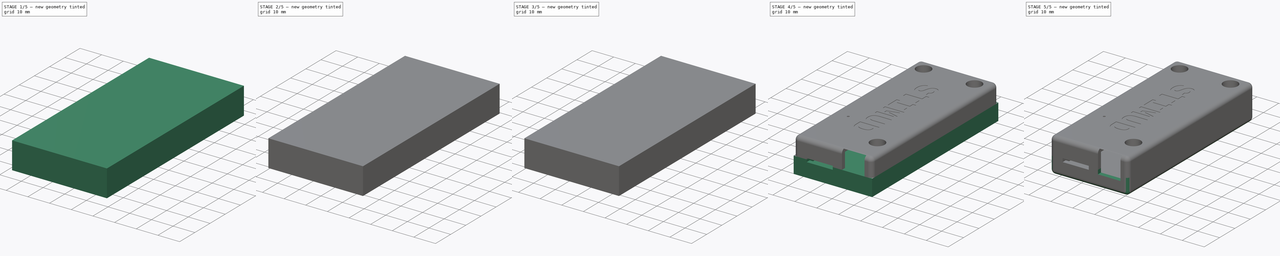
[diagram: build sequence overview — one tinted view per stage of 5, left to right]
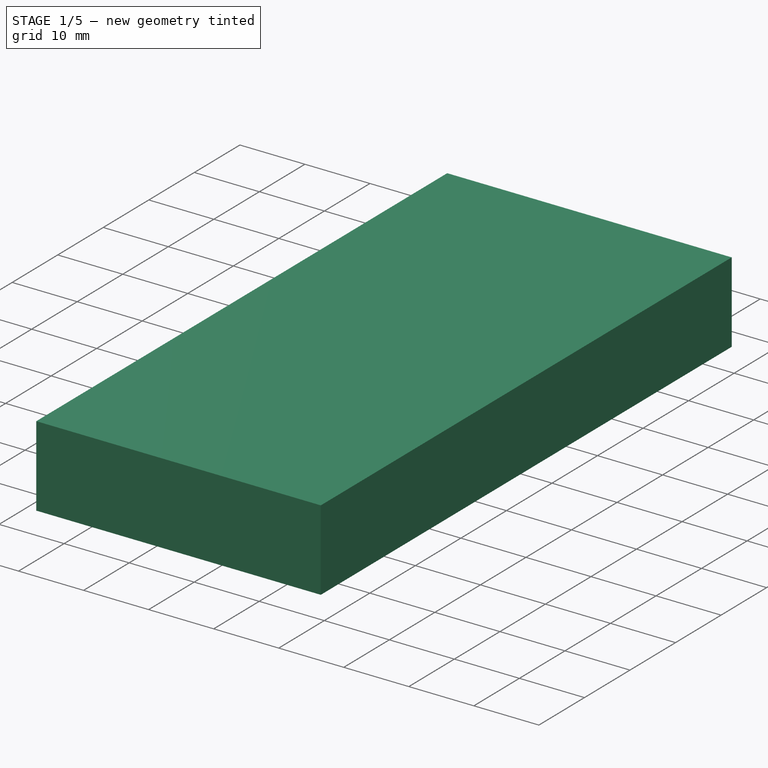
[diagram: stage 1 of 5 — iso view after this stage's code; geometry added in this stage tinted green]
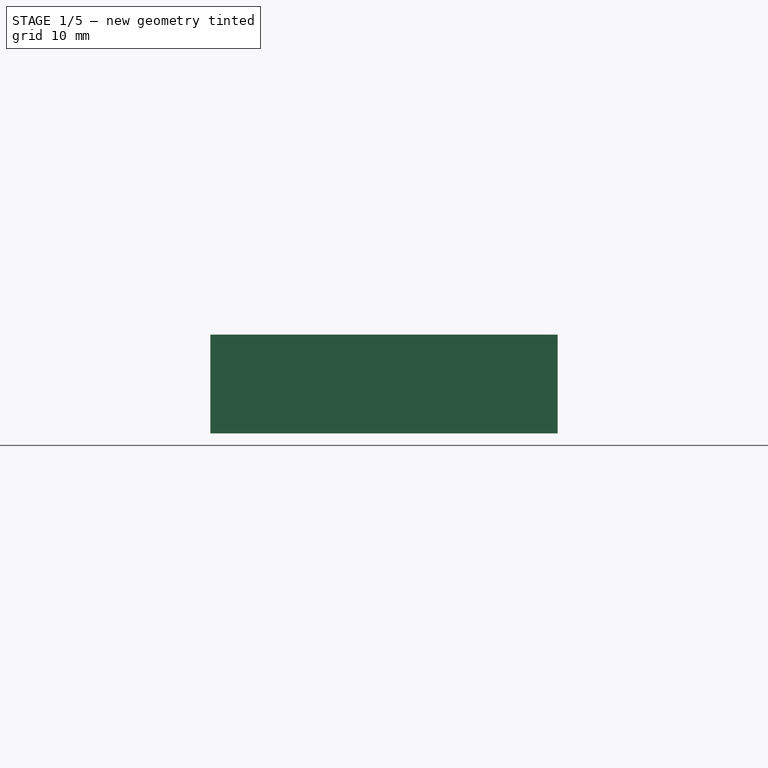
[diagram: stage 1 of 5 — front view after this stage's code; geometry added in this stage tinted green]
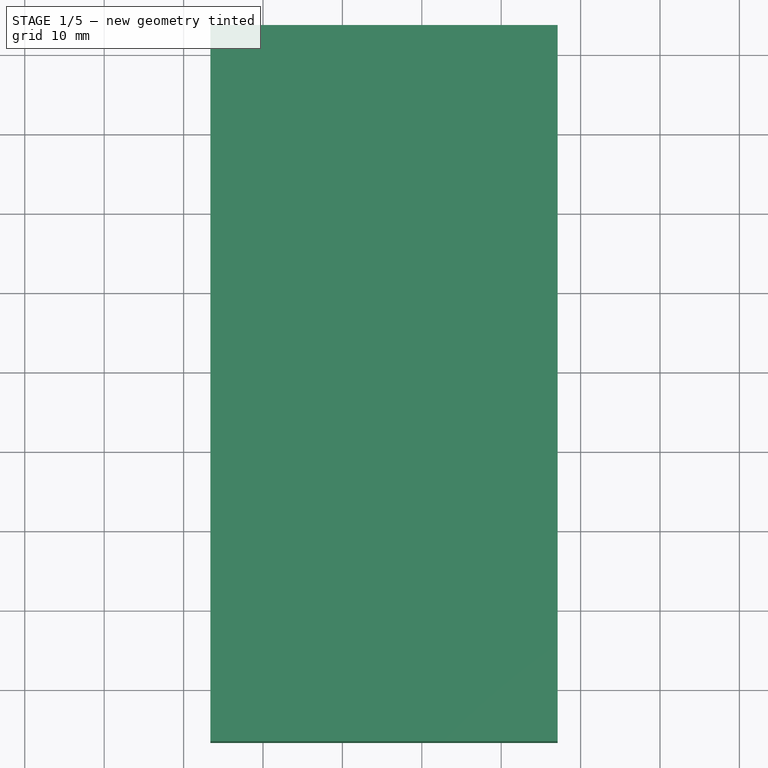
[diagram: stage 1 of 5 — top view after this stage's code; geometry added in this stage tinted green]
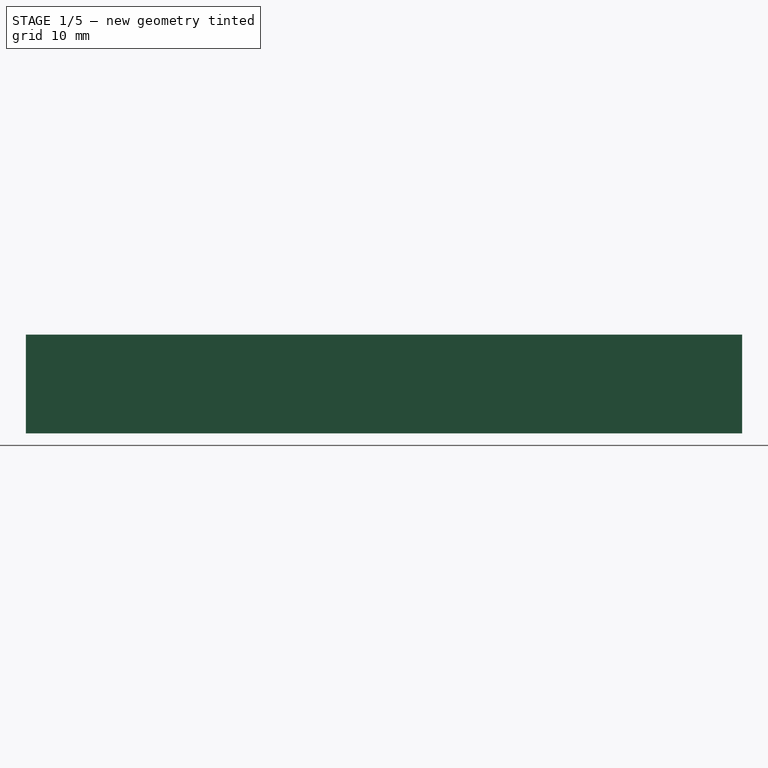
[diagram: stage 1 of 5 — right view after this stage's code; geometry added in this stage tinted green]
FCSTD DOCUMENT  (FreeCAD 0.18R4 (GitTag))
Label: Case
License: All rights reserved
LicenseURL: http://en.wikipedia.org/wiki/All_rights_reserved
objects: Part::Feature×50, Sketcher::SketchObject×23, App::Part×17, PartDesign::Pocket×14, PartDesign::Pad×7, PartDesign::Fillet×4, PartDesign::Hole×3, PartDesign::Body×3, Part::Part2DObjectPython×2, Spreadsheet::Sheet×1, Part::Cut×1
note: 131 computed .brp shape members not serialized (recipe doc carries the construction recipe); baked Part::Feature solids carry a one-line shape summary decoded from their .brp

FEATURE [Sketcher::SketchObject] Sketch009  label="CaseBSketchPad"
  AttachmentOffset = pos=(0,0,3) rot=(0,0,1;0rad)
  MapMode = 5
  Placement = pos=(0,0,3) rot=(0,0,1;0rad)
  Support = -> [XY_Plane018]
  expr: Constraints[11] = Params.BOARD_H + 2 * (Params.SPACE_XY + Params.GAP_XY + Params.WALL)
  expr: Constraints[10] = Params.BOARD_W + 2 * (Params.SPACE_XY + Params.GAP_XY + Params.WALL)
  expr: Constraints[9] = Params.SPACE_XY + Params.GAP_XY + Params.WALL
  expr: Constraints[8] = Params.SPACE_XY + Params.GAP_XY + Params.WALL
  expr: AttachmentOffset.Base.z = Params.BOARD_D + Params.TF_D2
  sketch-geometry (4):
    g0: LineSegment StartX=-2.65 StartY=-2.65 StartZ=0 EndX=33.13 EndY=-2.65 EndZ=0
    g1: LineSegment StartX=33.13 StartY=-2.65 StartZ=0 EndX=33.13 EndY=79.61 EndZ=0
    g2: LineSegment StartX=33.13 StartY=79.61 StartZ=0 EndX=-2.65 EndY=79.61 EndZ=0
    g3: LineSegment StartX=-2.65 StartY=79.61 StartZ=0 EndX=-2.65 EndY=-2.65 EndZ=0
  constraints (12):
    c: Coincident(g0,g1)
    c: Coincident(g1,g2)
    c: Coincident(g2,g3)
    c: Coincident(g3,g0)
    c: Horizontal(g0)
    c: Horizontal(g2)
    c: Vertical(g1)
    c: Vertical(g3)
    c: DistanceX(g0,g-1) = 2.65
    c: DistanceY(g0,g-1) = 2.65
    c: DistanceX(g0,g0) = 35.78
    c: DistanceY(g1,g1) = 82.26
FEATURE [PartDesign::Pad] Pad003  label="CaseBPad"
  Length = 8.45
  Length2 = 100
  Profile = -> Sketch009
  Type = 0
  expr: Length = Params.SWITCH_D - Params.TF_D2 + Params.GAP_Z + Params.CASE_B_EXTRA
FEATURE [Sketcher::SketchObject] Sketch010  label="CaseBSketchPocket"
  AttachmentOffset = pos=(0,0,3) rot=(0,0,1;0rad)
  MapMode = 5
  Placement = pos=(0,0,3) rot=(0,0,1;0rad)
  Support = -> [XY_Plane018]
  expr: Constraints[11] = Params.BOARD_H + 2 * (Params.SPACE_XY + Params.GAP_XY)
  expr: Constraints[10] = Params.BOARD_W + 2 * (Params.SPACE_XY + Params.GAP_XY)
  expr: Constraints[9] = Params.SPACE_XY + Params.GAP_XY
  expr: Constraints[8] = Params.SPACE_XY + Params.GAP_XY
  expr: AttachmentOffset.Base.z = Params.BOARD_D + Params.TF_D2
  sketch-geometry (4):
    g0: LineSegment StartX=-0.65 StartY=-0.65 StartZ=0 EndX=31.13 EndY=-0.65 EndZ=0
    g1: LineSegment StartX=31.13 StartY=-0.65 StartZ=0 EndX=31.13 EndY=77.61 EndZ=0
    g2: LineSegment StartX=31.13 StartY=77.61 StartZ=0 EndX=-0.65 EndY=77.61 EndZ=0
    g3: LineSegment StartX=-0.65 StartY=77.61 StartZ=0 EndX=-0.65 EndY=-0.65 EndZ=0
  constraints (12):
    c: Coincident(g0,g1)
    c: Coincident(g1,g2)
    c: Coincident(g2,g3)
    c: Coincident(g3,g0)
    c: Horizontal(g0)
    c: Horizontal(g2)
    c: Vertical(g1)
    c: Vertical(g3)
    c: DistanceX(g0,g-1) = 0.65
    c: DistanceY(g0,g-1) = 0.65
    c: DistanceX(g0,g0) = 31.78
    c: DistanceY(g1,g1) = 78.26
FEATURE [PartDesign::Pocket] Pocket005  label="CaseBPocket"
  BaseFeature = -> Pad003
  Length = 6.7
  Length2 = 100
  Profile = -> Sketch010
  Reversed = true
  Type = 0
  expr: Length = Params.CASE_D + Params.CASE_B_EXTRA - Params.SPACE_Z - 2 * Params.WALL - Params.BOARD_D - Params.TF_D2
FEATURE [Sketcher::SketchObject] Sketch012  label="CaseBSketchTfPocket"
  AttachmentOffset = pos=(0,0,3) rot=(0,0,1;0rad)
  MapMode = 5
  Placement = pos=(0,0,3) rot=(0,0,1;0rad)
  Support = -> [XY_Plane018]
  expr: Constraints[11] = Params.SPACE_XY + Params.GAP_XY + Params.WALL
  expr: Constraints.TD_W = CaseASketchTfPocket.Constraints.TD_W
  expr: Constraints.TF_X = CaseASketchTfPocket.Constraints.TF_X
  expr: AttachmentOffset.Base.z = Params.BOARD_D + Params.TF_D2
  sketch-geometry (4):
    g0: LineSegment StartX=3.28 StartY=0 StartZ=0 EndX=15.18 EndY=0 EndZ=0
    g1: LineSegment StartX=15.18 StartY=0 StartZ=0 EndX=15.18 EndY=-2.65 EndZ=0
    g2: LineSegment StartX=15.18 StartY=-2.65 StartZ=0 EndX=3.28 EndY=-2.65 EndZ=0
    g3: LineSegment StartX=3.28 StartY=-2.65 StartZ=0 EndX=3.28 EndY=0 EndZ=0
  constraints (12):
    c: Coincident(g0,g1)
    c: Coincident(g1,g2)
    c: Coincident(g2,g3)
    c: Coincident(g3,g0)
    c: Horizontal(g0)
    c: Horizontal(g2)
    c: Vertical(g1)
    c: Vertical(g3)
    c: Horizontal(g0,g-1)
    c: DistanceX(g-1,g0) = 3.28  'TF_X'
    c: DistanceX(g0,g0) = 11.9  'TD_W'
    c: DistanceY(g3,g3) = 2.65
FEATURE [PartDesign::Pocket] Pocket006  label="CaseBTfPocket"
  BaseFeature = -> Pocket005
  Length = 0.55
  Length2 = 100
  Profile = -> Sketch012
  Reversed = true
  Type = 0
  expr: Length = Params.TF_D + Params.GAP_Z + 0.3mm - Params.TF_D2
FEATURE [PartDesign::Body] Body001  label="CaseB"
  Group = -> [Sketch009,Pad003,Sketch010,Pocket005,Sketch012,Pocket006,Sketch013,Pocket007,Sketch014,Pocket008,Sketch015,Pocket009,Sketch018,Pad004,Sketch019,Pocket010,Sketch020,Pad005,Sketch021,Hole001,Sketch024,Hole002,Fillet002,Placment,Strings,Pocket012,Sketch025,Pocket013]
  Origin = -> Origin018
  Tip = -> Pocket013
FEATURE [Sketcher::SketchObject] Sketch026  label="CaseBEdgeSketchPad"
  AttachmentOffset = pos=(0,0,3) rot=(0,0,1;0rad)
  MapMode = 5
  Placement = pos=(0,0,3) rot=(0,0,1;0rad)
  Support = -> [XY_Plane019]
  expr: Constraints[11] = Params.BOARD_H + 2 * (2 * Params.FILLET_OUT + Params.SPACE_XY + Params.GAP_XY + Params.WALL)
  expr: Constraints[10] = Params.BOARD_W + 2 * (2 * Params.FILLET_OUT + Params.SPACE_XY + Params.GAP_XY + Params.WALL)
  expr: Constraints[9] = 2 * Params.FILLET_OUT + Params.SPACE_XY + Params.GAP_XY + Params.WALL
  expr: Constraints[8] = 2 * Params.FILLET_OUT + Params.SPACE_XY + Params.GAP_XY + Params.WALL
  expr: AttachmentOffset.Base.z = Params.BOARD_D + Params.TF_D2
  sketch-geometry (4):
    g0: LineSegment StartX=-6.63 StartY=-6.63 StartZ=0 EndX=37.11 EndY=-6.63 EndZ=0
    g1: LineSegment StartX=37.11 StartY=-6.63 StartZ=0 EndX=37.11 EndY=83.59 EndZ=0
    g2: LineSegment StartX=37.11 StartY=83.59 StartZ=0 EndX=-6.63 EndY=83.59 EndZ=0
    g3: LineSegment StartX=-6.63 StartY=83.59 StartZ=0 EndX=-6.63 EndY=-6.63 EndZ=0
  constraints (12):
    c: Coincident(g0,g1)
    c: Coincident(g1,g2)
    c: Coincident(g2,g3)
    c: Coincident(g3,g0)
    c: Horizontal(g0)
    c: Horizontal(g2)
    c: Vertical(g1)
    c: Vertical(g3)
    c: DistanceX(g0,g-1) = 6.63
    c: DistanceY(g0,g-1) = 6.63
    c: DistanceX(g0,g0) = 43.74
    c: DistanceY(g1,g1) = 90.22
FEATURE [PartDesign::Pad] Pad006  label="CaseBEdgePad"
  Length = 12.43
  Length2 = 100
  Profile = -> Sketch026
  Type = 0
  expr: Length = 2 * Params.FILLET_OUT + Params.SWITCH_D - Params.TF_D2 + Params.GAP_Z + Params.CASE_B_EXTRA
FEATURE [Sketcher::SketchObject] Sketch027  label="CaseBEdgeSketchPocket"
  AttachmentOffset = pos=(0,0,3) rot=(0,0,1;0rad)
  MapMode = 5
  Placement = pos=(0,0,3) rot=(0,0,1;0rad)
  Support = -> [XY_Plane019]
  expr: Constraints[11] = Params.BOARD_H + 2 * (Params.SPACE_XY + Params.GAP_XY + Params.WALL)
  expr: Constraints[10] = Params.BOARD_W + 2 * (Params.SPACE_XY + Params.GAP_XY + Params.WALL)
  expr: Constraints[9] = Params.SPACE_XY + Params.GAP_XY + Params.WALL
  expr: Constraints[8] = Params.SPACE_XY + Params.GAP_XY + Params.WALL
  expr: AttachmentOffset.Base.z = Params.BOARD_D + Params.TF_D2
  sketch-geometry (4):
    g0: LineSegment StartX=-2.65 StartY=-2.65 StartZ=0 EndX=33.13 EndY=-2.65 EndZ=0
    g1: LineSegment StartX=33.13 StartY=-2.65 StartZ=0 EndX=33.13 EndY=79.61 EndZ=0
    g2: LineSegment StartX=33.13 StartY=79.61 StartZ=0 EndX=-2.65 EndY=79.61 EndZ=0
    g3: LineSegment StartX=-2.65 StartY=79.61 StartZ=0 EndX=-2.65 EndY=-2.65 EndZ=0
  constraints (12):
    c: Coincident(g0,g1)
    c: Coincident(g1,g2)
    c: Coincident(g2,g3)
    c: Coincident(g3,g0)
    c: Horizontal(g0)
    c: Horizontal(g2)
    c: Vertical(g1)
    c: Vertical(g3)
    c: DistanceX(g0,g-1) = 2.65
    c: DistanceY(g0,g-1) = 2.65
    c: DistanceX(g0,g0) = 35.78
    c: DistanceY(g1,g1) = 82.26
FEATURE [PartDesign::Pocket] Pocket014  label="CaseBEdgePocket"
  BaseFeature = -> Pad006
  Length = 8.45
  Length2 = 100
  Profile = -> Sketch027
  Reversed = true
  Type = 0
  expr: Length = Params.SWITCH_D - Params.TF_D2 + Params.GAP_Z + Params.CASE_B_EXTRA
FEATURE [PartDesign::Fillet] Fillet003  label="CaseBEdgeFillet"
  Base = -> Pocket014 [Edge20,Edge23,Edge21,Edge18,Edge19,Edge17,Edge24,Edge22]
  BaseFeature = -> Pocket014
  Radius = 1.99
  expr: Radius = Params.FILLET_OUT
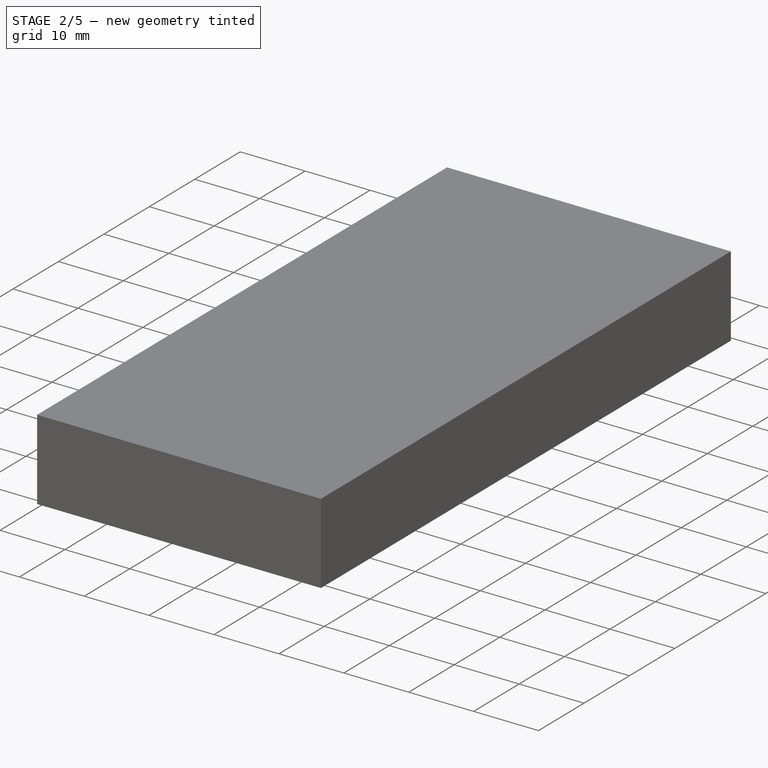
[diagram: stage 2 of 5 — iso view after this stage's code; geometry added in this stage tinted green]
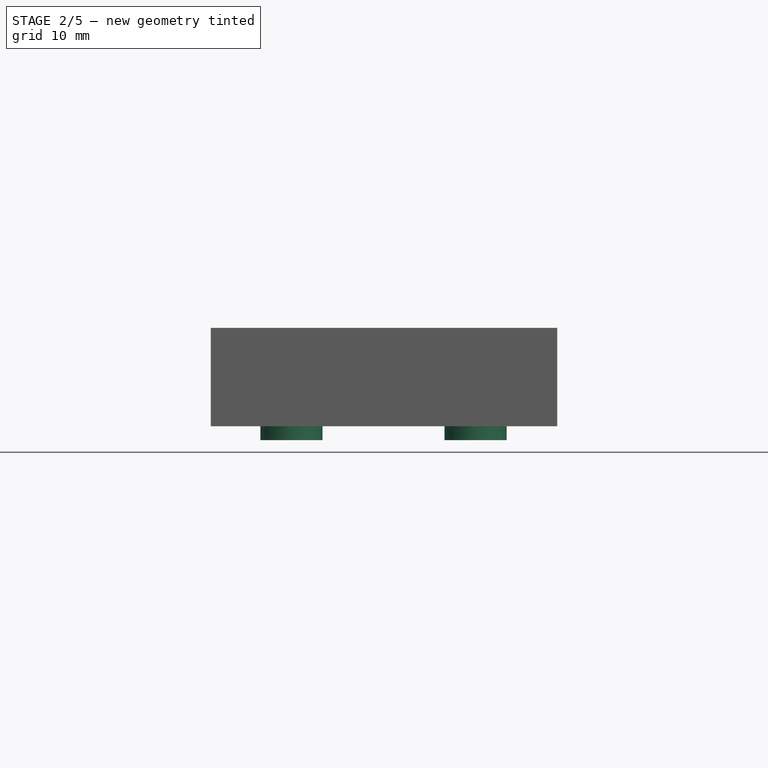
[diagram: stage 2 of 5 — front view after this stage's code; geometry added in this stage tinted green]
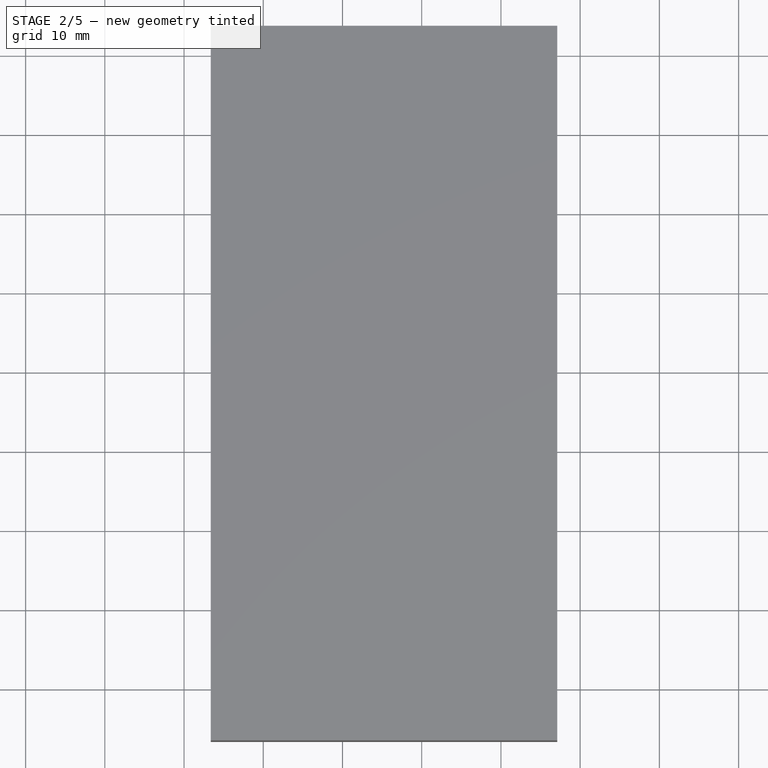
[diagram: stage 2 of 5 — top view after this stage's code; geometry added in this stage tinted green]
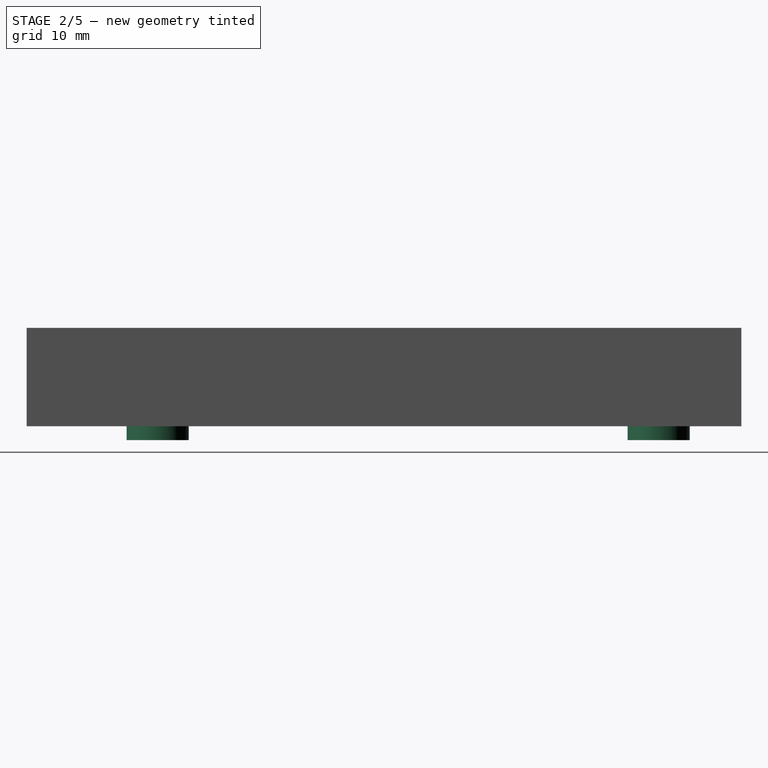
[diagram: stage 2 of 5 — right view after this stage's code; geometry added in this stage tinted green]
FEATURE [Sketcher::SketchObject] Sketch013  label="CaseBSketchSwitchPocket"
  AttachmentOffset = pos=(0,0,3) rot=(0,0,1;0rad)
  MapMode = 5
  Placement = pos=(0,0,3) rot=(0,0,1;0rad)
  Support = -> [XY_Plane018]
  expr: Constraints[10] = Params.SWITCH_Y + Params.SWITCH_H + Params.SPACE_XY + Params.GAP_XY + Params.WALL
  expr: Constraints[11] = Params.WALL + Params.SPACE_XY + Params.GAP_XY
  expr: Constraints.SWITCH_X = CaseASketchSwitchPocket.Constraints.SWITCH_X
  expr: Constraints.SWITCH_W = CaseASketchSwitchPocket.Constraints.SWITCH_W
  expr: AttachmentOffset.Base.z = Params.BOARD_D + Params.TF_D2
  sketch-geometry (4):
    g0: LineSegment StartX=19.36 StartY=5.76 StartZ=0 EndX=29.66 EndY=5.76 EndZ=0
    g1: LineSegment StartX=29.66 StartY=5.76 StartZ=0 EndX=29.66 EndY=-2.65 EndZ=0
    g2: LineSegment StartX=29.66 StartY=-2.65 StartZ=0 EndX=19.36 EndY=-2.65 EndZ=0
    g3: LineSegment StartX=19.36 StartY=-2.65 StartZ=0 EndX=19.36 EndY=5.76 EndZ=0
  constraints (12):
    c: Coincident(g0,g1)
    c: Coincident(g1,g2)
    c: Coincident(g2,g3)
    c: Coincident(g3,g0)
    c: Horizontal(g0)
    c: Horizontal(g2)
    c: Vertical(g1)
    c: Vertical(g3)
    c: DistanceX(g-1,g0) = 19.36  'SWITCH_X'
    c: DistanceX(g0,g0) = 10.3  'SWITCH_W'
    c: DistanceY(g3,g3) = 8.41
    c: DistanceY(g2,g-1) = 2.65
FEATURE [PartDesign::Pocket] Pocket007  label="CaseBSwitchPocket"
  BaseFeature = -> Pocket006
  Length = 8.3
  Length2 = 100
  Profile = -> Sketch013
  Reversed = true
  Type = 0
  expr: Length = Params.SWITCH_D - Params.TF_D2 + 2 * Params.GAP_Z
FEATURE [Sketcher::SketchObject] Sketch014  label="CaseBSketchUsbPocket"
  AttachmentOffset = pos=(0,0,3) rot=(0,0,1;0rad)
  MapMode = 5
  Placement = pos=(0,0,3) rot=(0,0,1;0rad)
  Support = -> [XY_Plane018]
  expr: Constraints[11] = Params.BOARD_H - Params.USB_Y - Params.GAP_XY
  expr: Constraints[10] = Params.BOARD_H + Params.SPACE_XY + Params.GAP_XY + Params.WALL
  expr: Constraints[9] = CaseASketchUsbPocket.Constraints.USB_W
  expr: Constraints[8] = CaseASketchUsbPocket.Constraints.USB_X
  expr: AttachmentOffset.Base.z = Params.BOARD_D + Params.TF_D2
  sketch-geometry (4):
    g0: LineSegment StartX=9.08 StartY=79.61 StartZ=0 EndX=21.38 EndY=79.61 EndZ=0
    g1: LineSegment StartX=21.38 StartY=79.61 StartZ=0 EndX=21.38 EndY=73.18 EndZ=0
    g2: LineSegment StartX=21.38 StartY=73.18 StartZ=0 EndX=9.08 EndY=73.18 EndZ=0
    g3: LineSegment StartX=9.08 StartY=73.18 StartZ=0 EndX=9.08 EndY=79.61 EndZ=0
  constraints (12):
    c: Coincident(g0,g1)
    c: Coincident(g1,g2)
    c: Coincident(g2,g3)
    c: Coincident(g3,g0)
    c: Horizontal(g0)
    c: Horizontal(g2)
    c: Vertical(g1)
    c: Vertical(g3)
    c: DistanceX(g-1,g2) = 9.08
    c: DistanceX(g2,g2) = 12.3
    c: DistanceY(g-1,g0) = 79.61
    c: DistanceY(g-1,g2) = 73.18
FEATURE [PartDesign::Pocket] Pocket008  label="CaseBUsbPocket"
  BaseFeature = -> Pocket007
  Length = 1.43
  Length2 = 100
  Profile = -> Sketch014
  Reversed = true
  Type = 0
  expr: Length = Params.USB_D + Params.USB_Z + Params.GAP_Z - Params.TF_D2 + 0.1mm
FEATURE [Sketcher::SketchObject] Sketch015  label="CaseBSketchLatchPocket"
  AttachmentOffset = pos=(0,0,3) rot=(0,0,1;0rad)
  MapMode = 5
  Placement = pos=(0,0,3) rot=(0,0,1;0rad)
  Support = -> [XY_Plane018]
  expr: Constraints[50] = Params.BOARD_H + 2 * (Params.SPACE_XY + Params.GAP_XY)
  expr: Constraints[34] = CaseASketchSwitchPocket.Constraints.SWITCH_X + CaseASketchSwitchPocket.Constraints.SWITCH_W
  expr: Constraints[33] = Params.BOARD_W + 2 * (Params.SPACE_XY + Params.GAP_XY)
  expr: Constraints[15] = Params.SPACE_XY + Params.GAP_XY
  expr: Constraints[70] = CaseASketchUsbPocket.Constraints.USB_W
  expr: Constraints[17] = Params.TF_H + Params.GAP_XY
  expr: Constraints[14] = Params.SPACE_XY + Params.GAP_XY
  expr: Constraints[12] = Params.WALL / 2
  expr: Constraints[52] = CaseASketchUsbPocket.Constraints.USB_X
  expr: Constraints[16] = CaseASketchTfPocket.Constraints.TF_X
  expr: AttachmentOffset.Base.z = Params.BOARD_D + Params.TF_D2
  sketch-geometry (24):
    g0: LineSegment StartX=-0.65 StartY=14.65 StartZ=0 EndX=-0.65 EndY=-0.65 EndZ=0
    g1: LineSegment StartX=-0.65 StartY=-0.65 StartZ=0 EndX=3.28 EndY=-0.65 EndZ=0
    g2: LineSegment StartX=3.28 StartY=-0.65 StartZ=0 EndX=3.28 EndY=-1.65 EndZ=0
    g3: LineSegment StartX=3.28 StartY=-1.65 StartZ=0 EndX=-1.65 EndY=-1.65 EndZ=0
    g4: LineSegment StartX=-1.65 StartY=-1.65 StartZ=0 EndX=-1.65 EndY=14.65 EndZ=0
    g5: LineSegment StartX=-1.65 StartY=14.65 StartZ=0 EndX=-0.65 EndY=14.65 EndZ=0
    g6: LineSegment StartX=29.66 StartY=-0.65 StartZ=0 EndX=29.66 EndY=-1.65 EndZ=0
    g7: LineSegment StartX=29.66 StartY=-1.65 StartZ=0 EndX=32.13 EndY=-1.65 EndZ=0
    g8: LineSegment StartX=32.13 StartY=-1.65 StartZ=0 EndX=32.13 EndY=14.65 EndZ=0
    g9: LineSegment StartX=32.13 StartY=14.65 StartZ=0 EndX=31.13 EndY=14.65 EndZ=0
    g10: LineSegment StartX=31.13 StartY=14.65 StartZ=0 EndX=31.13 EndY=-0.65 EndZ=0
    g11: LineSegment StartX=31.13 StartY=-0.65 StartZ=0 EndX=29.66 EndY=-0.65 EndZ=0
    g12: LineSegment StartX=-1.65 StartY=78.61 StartZ=0 EndX=-1.65 EndY=62.31 EndZ=0
    g13: LineSegment StartX=-1.65 StartY=62.31 StartZ=0 EndX=-0.65 EndY=62.31 EndZ=0
    g14: LineSegment StartX=-0.65 StartY=62.31 StartZ=0 EndX=-0.65 EndY=77.61 EndZ=0
    g15: LineSegment StartX=-0.65 StartY=77.61 StartZ=0 EndX=9.08 EndY=77.61 EndZ=0
    g16: LineSegment StartX=9.08 StartY=77.61 StartZ=0 EndX=9.08 EndY=78.61 EndZ=0
    g17: LineSegment StartX=9.08 StartY=78.61 StartZ=0 EndX=-1.65 EndY=78.61 EndZ=0
    g18: LineSegment StartX=21.38 StartY=78.61 StartZ=0 EndX=21.38 EndY=77.61 EndZ=0
    g19: LineSegment StartX=21.38 StartY=77.61 StartZ=0 EndX=31.13 EndY=77.61 EndZ=0
    g20: LineSegment StartX=31.13 StartY=77.61 StartZ=0 EndX=31.13 EndY=62.31 EndZ=0
    g21: LineSegment StartX=31.13 StartY=62.31 StartZ=0 EndX=32.13 EndY=62.31 EndZ=0
    g22: LineSegment StartX=32.13 StartY=62.31 StartZ=0 EndX=32.13 EndY=78.61 EndZ=0
    g23: LineSegment StartX=32.13 StartY=78.61 StartZ=0 EndX=21.38 EndY=78.61 EndZ=0
  constraints (72):
    c: Vertical(g0)
    c: Coincident(g0,g1)
    c: Horizontal(g1)
    c: Coincident(g1,g2)
    c: Vertical(g2)
    c: Coincident(g2,g3)
    c: Horizontal(g3)
    c: Coincident(g3,g4)
    c: Vertical(g4)
    c: Coincident(g4,g5)
    c: Coincident(g5,g0)
    c: Horizontal(g5)
    c: DistanceX(g5,g5) = 1
    c: Equal(g5,g2)
    c: DistanceY(g1,g-1) = 0.65
    c: DistanceX(g0,g-1) = 0.65
    c: DistanceX(g-1,g1) = 3.28
    c: DistanceY(g-1,g0) = 14.65
    c: Vertical(g6)
    c: Coincident(g6,g7)
    c: Horizontal(g7)
    c: Coincident(g7,g8)
    c: Vertical(g8)
    c: Coincident(g8,g9)
    c: Horizontal(g9)
    c: Coincident(g9,g10)
    c: Vertical(g10)
    c: Coincident(g10,g11)
    c: Horizontal(g11)
    c: Coincident(g6,g11)
    c: Horizontal(g6,g1)
    c: Equal(g2,g6)
    c: Equal(g9,g6)
    c: DistanceX(g0,g10) = 31.78
    c: DistanceX(g-1,g6) = 29.66
    c: Horizontal(g9,g0)
    c: Vertical(g12)
    c: Coincident(g12,g13)
    c: Horizontal(g13)
    c: Coincident(g13,g14)
    c: Vertical(g14)
    c: Coincident(g14,g15)
    c: Horizontal(g15)
    c: Coincident(g15,g16)
    c: Vertical(g16)
    c: Coincident(g16,g17)
    c: Coincident(g17,g12)
    c: Horizontal(g17)
    c: Equal(g13,g5)
    c: Equal(g13,g16)
    c: DistanceY(g0,g14) = 78.26
    c: Equal(g14,g0)
    c: DistanceX(g-1,g15) = 9.08
    c: Vertical(g13,g0)
    c: Vertical(g18)
    c: Coincident(g18,g19)
    c: Horizontal(g19)
    c: Coincident(g19,g20)
    c: Vertical(g20)
    c: Coincident(g20,g21)
    c: Horizontal(g21)
    c: Coincident(g21,g22)
    c: Vertical(g22)
    c: Coincident(g22,g23)
    c: Coincident(g23,g18)
    c: Horizontal(g23)
    c: Equal(g18,g16)
    c: Horizontal(g18,g15)
    c: Equal(g18,g21)
    c: Vertical(g20,g9)
    c: DistanceX(g15,g18) = 12.3
    c: Horizontal(g20,g13)
FEATURE [PartDesign::Pocket] Pocket009  label="CaseBLatchPocket"
  BaseFeature = -> Pocket008
  Length = 2.55
  Length2 = 100
  Profile = -> Sketch015
  Reversed = true
  Type = 0
  expr: Length = Params.CASE_A_L + Params.GAP_Z
FEATURE [Sketcher::SketchObject] Sketch018  label="CaseBSketchLedPad"
  AttachmentOffset = pos=(0,0,7.5) rot=(0,0,1;0rad)
  MapMode = 5
  Placement = pos=(0,0,7.5) rot=(0,0,1;0rad)
  Support = -> [XY_Plane018]
  expr: Constraints[4] = Params.LED_Y
  expr: Constraints[3] = Params.LED_X
  expr: Constraints[2] = Params.LED_R + Params.WALL / 2
  expr: Constraints[1] = Params.LED_R
  expr: AttachmentOffset.Base.z = Params.LED_Z
  sketch-geometry (2):
    g0: Circle CenterX=4.58 CenterY=22.59 CenterZ=0 NormalX=0 NormalY=0 NormalZ=1 AngleXU=0 Radius=2.27
    g1: Circle CenterX=4.58 CenterY=22.59 CenterZ=0 NormalX=0 NormalY=0 NormalZ=1 AngleXU=0 Radius=1.27
  constraints (5):
    c: Coincident(g1,g0)
    c: Radius(g1) = 1.27
    c: Radius(g0) = 2.27
    c: DistanceX(g-1,g0) = 4.58
    c: DistanceY(g-1,g0) = 22.59
FEATURE [PartDesign::Pad] Pad004  label="CaseBLedPad"
  BaseFeature = -> Pocket009
  Length = 16.9
  Length2 = 100
  Profile = -> Sketch018
  Type = 2
  expr: Length = Params.BOARD_D + Params.LED_Z + Params.SWITCH_D + Params.CASE_B_EXTRA - Params.WALL
FEATURE [Sketcher::SketchObject] Sketch019  label="CaseBSketchLedPocket"
  AttachmentOffset = pos=(0,0,11.45) rot=(0,0,1;0rad)
  MapMode = 5
  Placement = pos=(0,0,11.45) rot=(0,0,1;0rad)
  Support = -> [XY_Plane018]
  expr: Constraints[2] = Params.LED_Y
  expr: Constraints[1] = Params.LED_X
  expr: AttachmentOffset.Base.z = Params.BOARD_D + Params.SWITCH_D + Params.GAP_Z + Params.CASE_B_EXTRA
  sketch-geometry (1):
    g0: Circle CenterX=4.58 CenterY=22.59 CenterZ=0 NormalX=0 NormalY=0 NormalZ=1 AngleXU=0 Radius=0.5
  constraints (3):
    c: Radius(g0) = 0.5
    c: DistanceX(g-1,g0) = 4.58
    c: DistanceY(g-1,g0) = 22.59
FEATURE [PartDesign::Pocket] Pocket010  label="CaseBLedPocket"
  BaseFeature = -> Pad004
  Length = 5
  Length2 = 100
  Profile = -> Sketch019
  Type = 1
FEATURE [Sketcher::SketchObject] Sketch020  label="CaseBSketchPcbPads"
  AttachmentOffset = pos=(0,0,1.25) rot=(0,0,1;0rad)
  MapMode = 5
  Placement = pos=(0,0,1.25) rot=(0,0,1;0rad)
  Support = -> [XY_Plane018]
  expr: Constraints[5] = Params.HOLE2_Y
  expr: Constraints[2] = Params.HOLE_R * 1.2 + Params.WALL
  expr: AttachmentOffset.Base.z = Params.BOARD_D + Params.GAP_Z
  expr: Constraints[8] = Params.HOLE3_X
  expr: Constraints[7] = Params.HOLE3_Y
  expr: Constraints[6] = Params.HOLE2_X
  expr: Constraints[4] = Params.HOLE1_Y
  expr: Constraints[3] = Params.HOLE1_X
  sketch-geometry (3):
    g0: Circle CenterX=26.8 CenterY=9.91 CenterZ=0 NormalX=0 NormalY=0 NormalZ=1 AngleXU=0 Radius=3.92
    g1: Circle CenterX=3.56 CenterY=73.15 CenterZ=0 NormalX=0 NormalY=0 NormalZ=1 AngleXU=0 Radius=3.92
    g2: Circle CenterX=26.8 CenterY=73.15 CenterZ=0 NormalX=0 NormalY=0 NormalZ=1 AngleXU=0 Radius=3.92
  constraints (9):
    c: Equal(g2,g1)
    c: Equal(g1,g0)
    c: Radius(g0) = 3.92
    c: DistanceX(g-1,g0) = 26.8
    c: DistanceY(g-1,g0) = 9.91
    c: DistanceY(g-1,g1) = 73.15
    c: DistanceX(g-1,g1) = 3.56
    c: DistanceY(g-1,g2) = 73.15
    c: DistanceX(g-1,g2) = 26.8
FEATURE [PartDesign::Pad] Pad005  label="CaseBPcbPads"
  BaseFeature = -> Pocket010
  Length = 10
  Length2 = 100
  Profile = -> Sketch020
  Type = 2
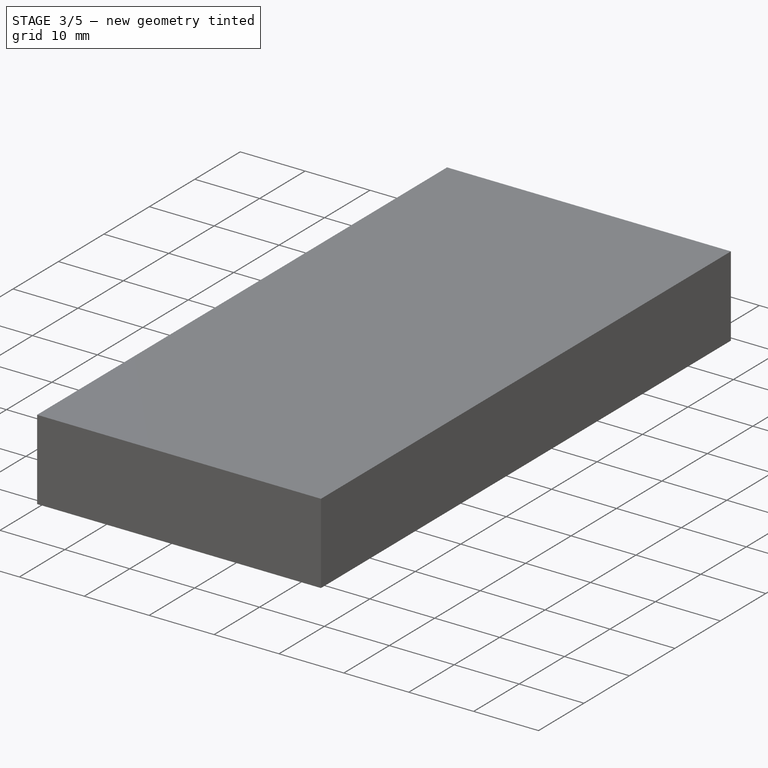
[diagram: stage 3 of 5 — iso view after this stage's code; geometry added in this stage tinted green]
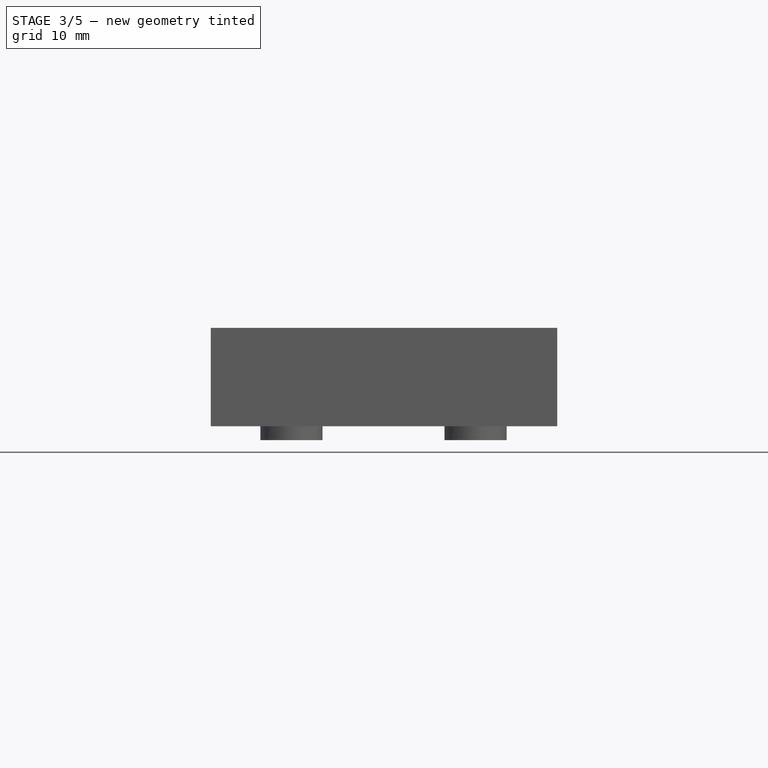
[diagram: stage 3 of 5 — front view after this stage's code; geometry added in this stage tinted green]
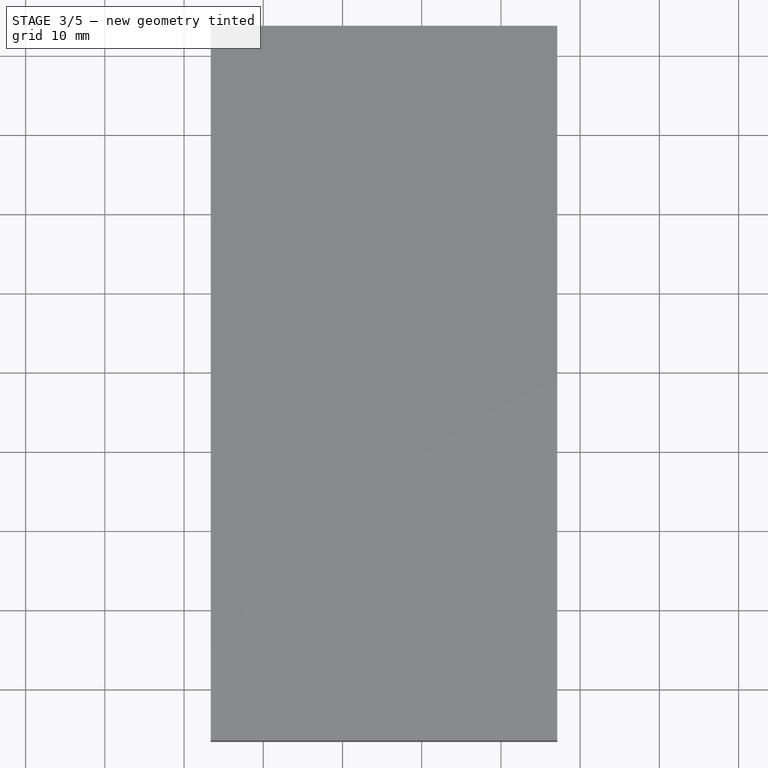
[diagram: stage 3 of 5 — top view after this stage's code; geometry added in this stage tinted green]
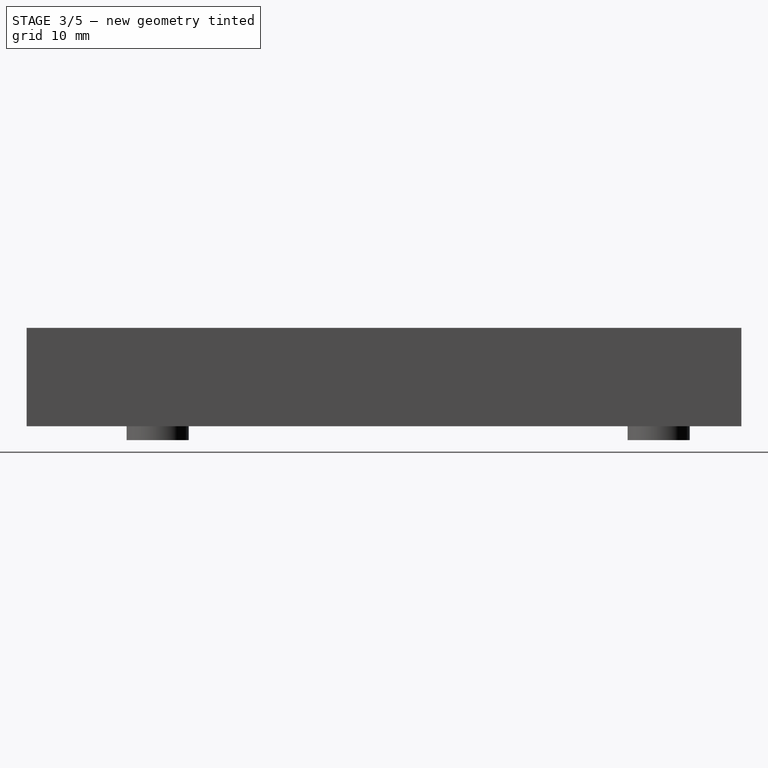
[diagram: stage 3 of 5 — right view after this stage's code; geometry added in this stage tinted green]
FEATURE [Sketcher::SketchObject] Sketch021  label="CaseBSketchHoles1"
  AttachmentOffset = pos=(0,0,11.45) rot=(0,0,1;0rad)
  MapMode = 5
  Placement = pos=(0,0,11.45) rot=(0,0,1;0rad)
  Support = -> [XY_Plane018]
  expr: AttachmentOffset.Base.z = Params.BOARD_D + Params.SWITCH_D + Params.GAP_Z + Params.CASE_B_EXTRA
  expr: Constraints[8] = Params.HOLE3_X
  expr: Constraints[7] = Params.HOLE3_Y
  expr: Constraints[6] = Params.HOLE2_X
  expr: Constraints[4] = Params.HOLE1_Y
  expr: Constraints[3] = Params.HOLE1_X
  expr: Constraints[5] = Params.HOLE2_Y
  expr: Constraints[2] = Params.HOLE_R + Params.WALL
  sketch-geometry (3):
    g0: Circle CenterX=26.8 CenterY=9.91 CenterZ=0 NormalX=0 NormalY=0 NormalZ=1 AngleXU=0 Radius=3.6
    g1: Circle CenterX=3.56 CenterY=73.15 CenterZ=0 NormalX=0 NormalY=0 NormalZ=1 AngleXU=0 Radius=3.6
    g2: Circle CenterX=26.8 CenterY=73.15 CenterZ=0 NormalX=0 NormalY=0 NormalZ=1 AngleXU=0 Radius=3.6
  constraints (9):
    c: Equal(g2,g1)
    c: Equal(g1,g0)
    c: Radius(g0) = 3.6
    c: DistanceX(g-1,g0) = 26.8
    c: DistanceY(g-1,g0) = 9.91
    c: DistanceY(g-1,g1) = 73.15
    c: DistanceX(g-1,g1) = 3.56
    c: DistanceY(g-1,g2) = 73.15
    c: DistanceX(g-1,g2) = 26.8
FEATURE [Sketcher::SketchObject] Sketch024  label="CaseBSketchHoles2"
  AttachmentOffset = pos=(0,0,7.75) rot=(0,0,1;0rad)
  MapMode = 5
  Placement = pos=(0,0,7.75) rot=(0,0,1;0rad)
  Support = -> [XY_Plane018]
  expr: AttachmentOffset.Base.z = Params.BOARD_D + Params.SWITCH_D + Params.GAP_Z + Params.CASE_B_EXTRA + Params.CASE_SCREW_L - Params.CASE_D
  expr: Constraints[8] = Params.HOLE3_X
  expr: Constraints[7] = Params.HOLE3_Y
  expr: Constraints[6] = Params.HOLE2_X
  expr: Constraints[4] = Params.HOLE1_Y
  expr: Constraints[3] = Params.HOLE1_X
  expr: Constraints[5] = Params.HOLE2_Y
  expr: Constraints[2] = Params.HOLE_R + Params.WALL
  sketch-geometry (3):
    g0: Circle CenterX=26.8 CenterY=9.91 CenterZ=0 NormalX=0 NormalY=0 NormalZ=1 AngleXU=0 Radius=3.6
    g1: Circle CenterX=3.56 CenterY=73.15 CenterZ=0 NormalX=0 NormalY=0 NormalZ=1 AngleXU=0 Radius=3.6
    g2: Circle CenterX=26.8 CenterY=73.15 CenterZ=0 NormalX=0 NormalY=0 NormalZ=1 AngleXU=0 Radius=3.6
  constraints (9):
    c: Equal(g2,g1)
    c: Equal(g1,g0)
    c: Radius(g0) = 3.6
    c: DistanceX(g-1,g0) = 26.8
    c: DistanceY(g-1,g0) = 9.91
    c: DistanceY(g-1,g1) = 73.15
    c: DistanceX(g-1,g1) = 3.56
    c: DistanceY(g-1,g2) = 73.15
    c: DistanceX(g-1,g2) = 26.8
FEATURE [PartDesign::Hole] Hole001  label="CaseBHoles1"
  BaseFeature = -> Pad005
  Depth = 3.7
  DepthType = 0
  Diameter = 6.6
  DrillPoint = 0
  DrillPointAngle = 118
  HoleCutCountersinkAngle = 90
  HoleCutDepth = 0
  HoleCutDiameter = 0
  HoleCutType = 0
  ModelActualThread = false
  Profile = -> Sketch021
  Tapered = false
  TaperedAngle = 90
  ThreadAngle = 0
  ThreadClass = 0
  ThreadCutOffInner = 0
  ThreadCutOffOuter = 0
  ThreadDirection = 0
  ThreadFit = 0
  ThreadPitch = 0
  ThreadSize = 0
  ThreadType = 0
  Threaded = false
  expr: Depth = Params.CASE_D - Params.CASE_SCREW_L
  expr: Diameter = Params.CASE_SCREW * 2.1 + 2 * Params.GAP_XY
FEATURE [PartDesign::Hole] Hole002  label="CaseBHoles2"
  BaseFeature = -> Hole001
  Depth = 25
  DepthType = 1
  Diameter = 3.45
  DrillPoint = 1
  DrillPointAngle = 118
  HoleCutCountersinkAngle = 90
  HoleCutDepth = 0
  HoleCutDiameter = 6.6
  HoleCutType = 2
  ModelActualThread = false
  Profile = -> Sketch024
  Tapered = false
  TaperedAngle = 90
  ThreadAngle = 0
  ThreadClass = 0
  ThreadCutOffInner = 0
  ThreadCutOffOuter = 0
  ThreadDirection = 0
  ThreadFit = 0
  ThreadPitch = 0
  ThreadSize = 0
  ThreadType = 0
  Threaded = false
  expr: HoleCutDiameter = Params.CASE_SCREW * 2.1 + 2 * Params.GAP_XY
  expr: Diameter = Params.CASE_SCREW * 1.1 + Params.GAP_XY
FEATURE [PartDesign::Body] Body  label="CaseA"
  Group = -> [Sketch,Pad,Sketch001,Pocket,Sketch002,Pad001,Sketch003,Hole,Sketch004,Pocket001,Sketch005,Pocket002,Sketch006,Pocket003,Sketch007,Pad002,Sketch008,Pocket004,Fillet,Fillet001]
  Origin = -> Origin
  Tip = -> Fillet001
FEATURE [PartDesign::Fillet] Fillet002  label="CaseBFilletStands"
  Base = -> Hole002 [Edge99,Edge96,Edge98,Edge97]
  BaseFeature = -> Hole002
  Radius = 1
  expr: Radius = Params.FILLET_STAND
FEATURE [Part::Part2DObjectPython] Placment  label="CENTER"  # Draft 2D object (typed FeaturePython)
  AttacherType = Attacher::AttachEngine3D
  ExposePlacement = true
  FlipZ = false
  Invert = false
  MarkerShape = 1
  MarkerSize = 5
  NumElements = 1
  Placement = pos=(15.24,38.48,11.45) rot=(0,0,-1;1.5708rad)
  PlacementChoice = 0
  Type = lattice2Placement.LatticePlacement
  isLattice = 1
  expr: Placement.Base.y = Params.BOARD_H / 2
  expr: Placement.Base.x = Params.BOARD_W / 2
  expr: Placement.Base.z = Params.BOARD_D + Params.SWITCH_D + Params.GAP_Z + Params.CASE_B_EXTRA
FEATURE [Part::Part2DObjectPython] Strings  label="STIMUD"  # Draft 2D object (typed FeaturePython)
  AlignPrecisionBoundBox = false
  ArrayLink = -> Placment
  FontFile = LiberationMono-Bold.ttf
  FullPathToFont = <path>
  Size = 10
  Strings = STIMUD
  Tracking = 0
  XAlign = 3
  YAlign = 3
  expr: Size = Params.LABEL_H
FEATURE [PartDesign::Pocket] Pocket012  label="StimudPocket"
  BaseFeature = -> Fillet002
  Length = 0.2
  Length2 = 100
  Profile = -> Strings
  Type = 0
  expr: Length = Params.LABEL_D
FEATURE [Sketcher::SketchObject] Sketch025  label="CaseBSketchConPocket"
  AttachmentOffset = pos=(0,0,9.55) rot=(0,0,1;0rad)
  MapMode = 5
  Placement = pos=(0,0,9.55) rot=(0,0,1;0rad)
  Support = -> [XY_Plane018]
  expr: Constraints[11] = Params.CON_H + 2 * (Params.GAP_XY + Params.CON_SPACE)
  expr: Constraints[10] = Params.CON_Y - Params.GAP_XY - Params.CON_SPACE
  expr: Constraints[9] = Params.CON_W + 2 * (Params.GAP_XY + Params.CON_SPACE)
  expr: Constraints[8] = Params.CON_X - Params.GAP_XY - Params.CON_SPACE
  expr: AttachmentOffset.Base.z = Params.BOARD_D + Params.SWITCH_D + Params.GAP_XY + Params.CASE_B_EXTRA - Params.WALL
  sketch-geometry (4):
    g0: LineSegment StartX=19.67 StartY=18.3 StartZ=0 EndX=28.59 EndY=18.3 EndZ=0
    g1: LineSegment StartX=28.59 StartY=18.3 StartZ=0 EndX=28.59 EndY=14.46 EndZ=0
    g2: LineSegment StartX=28.59 StartY=14.46 StartZ=0 EndX=19.67 EndY=14.46 EndZ=0
    g3: LineSegment StartX=19.67 StartY=14.46 StartZ=0 EndX=19.67 EndY=18.3 EndZ=0
  constraints (12):
    c: Coincident(g0,g1)
    c: Coincident(g1,g2)
    c: Coincident(g2,g3)
    c: Coincident(g3,g0)
    c: Horizontal(g0)
    c: Horizontal(g2)
    c: Vertical(g1)
    c: Vertical(g3)
    c: DistanceX(g-1,g2) = 19.67
    c: DistanceX(g2,g2) = 8.92
    c: DistanceY(g-1,g2) = 14.46
    c: DistanceY(g1,g1) = 3.84
FEATURE [PartDesign::Pocket] Pocket013  label="CaseBConPocket"
  BaseFeature = -> Pocket012
  Length = 1
  Length2 = 100
  Profile = -> Sketch025
  Reversed = true
  Type = 0
  expr: Length = Params.CON_D
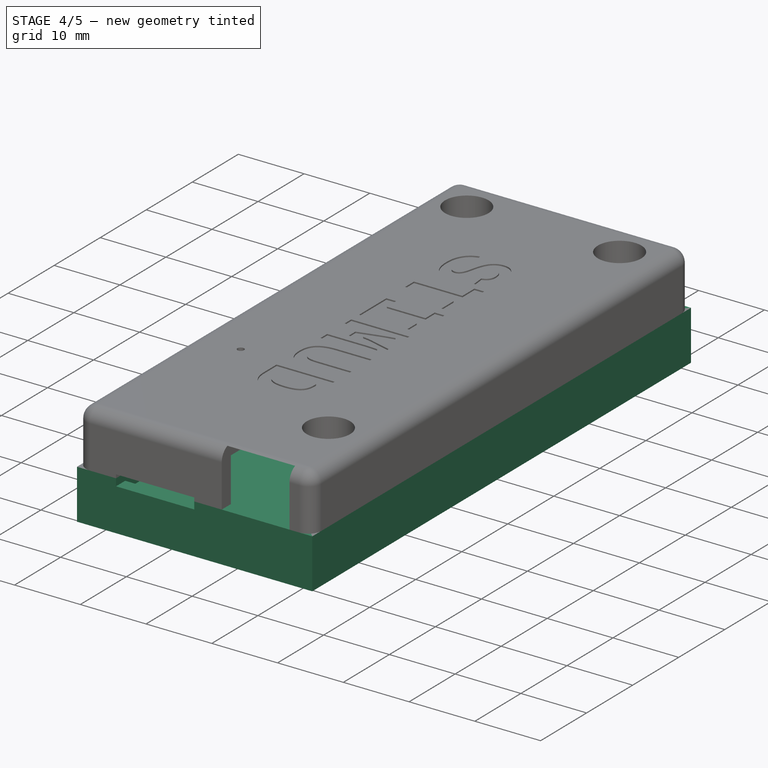
[diagram: stage 4 of 5 — iso view after this stage's code; geometry added in this stage tinted green]
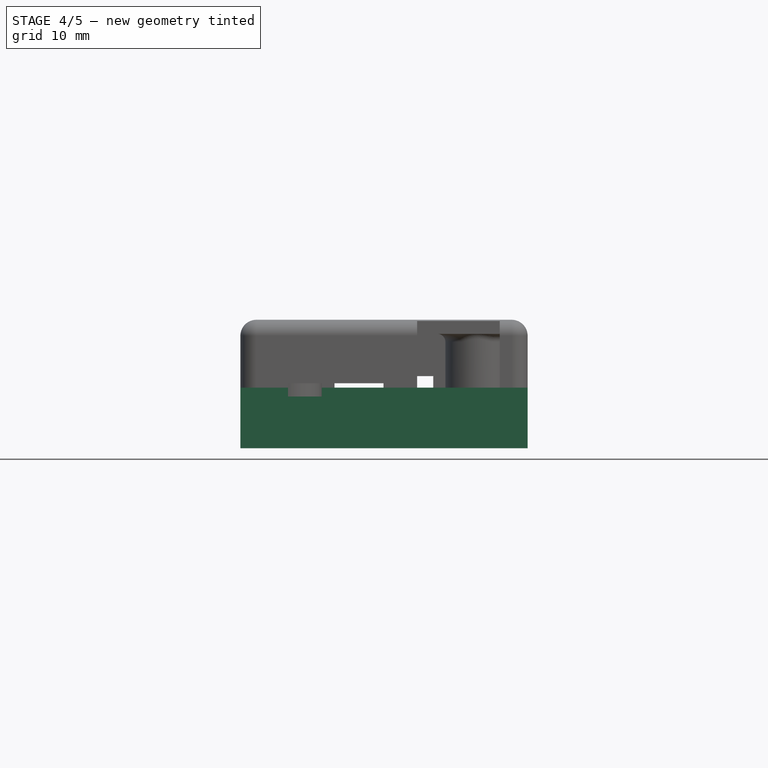
[diagram: stage 4 of 5 — front view after this stage's code; geometry added in this stage tinted green]
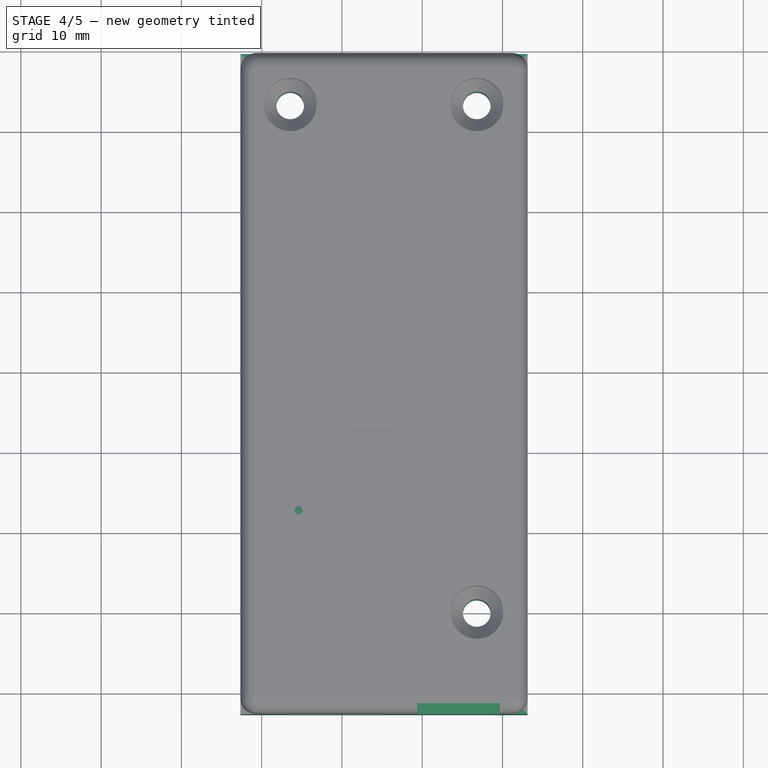
[diagram: stage 4 of 5 — top view after this stage's code; geometry added in this stage tinted green]
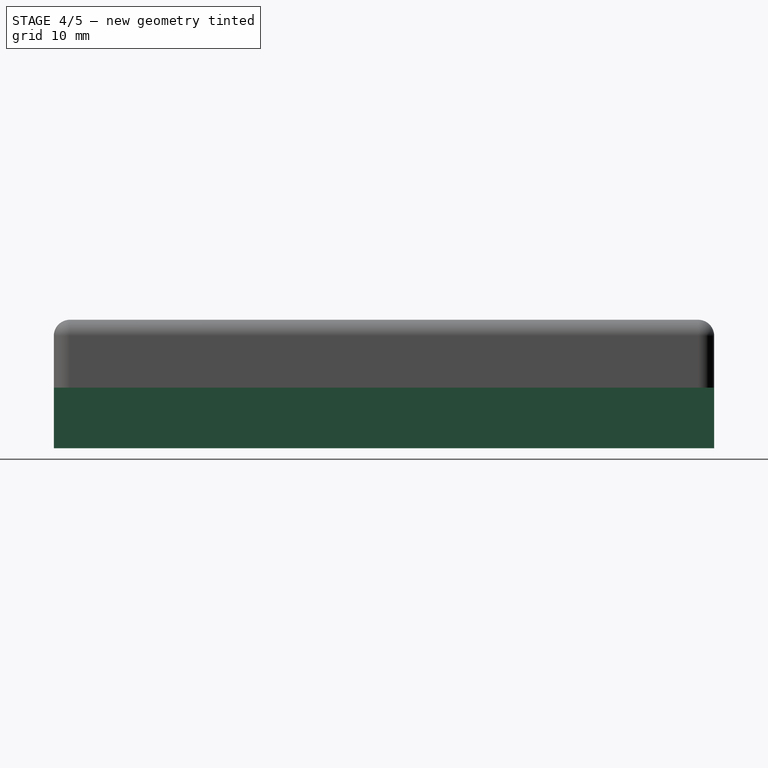
[diagram: stage 4 of 5 — right view after this stage's code; geometry added in this stage tinted green]
FEATURE [Sketcher::SketchObject] Sketch  label="CaseASketchPad"
  AttachmentOffset = pos=(0,0,-4.55) rot=(0,0,1;0rad)
  MapMode = 5
  Placement = pos=(0,0,-4.55) rot=(0,0,1;0rad)
  Support = -> [XY_Plane]
  expr: Constraints[11] = Params.BOARD_H + 2 * (Params.WALL + Params.SPACE_XY + Params.GAP_XY)
  expr: Constraints[10] = Params.WALL + Params.SPACE_XY + Params.GAP_XY
  expr: Constraints[9] = Params.WALL + Params.SPACE_XY + Params.GAP_XY
  expr: AttachmentOffset.Base.z = -(Params.SPACE_Z + Params.GAP_Z + Params.WALL)
  expr: Constraints[8] = Params.BOARD_W + 2 * (Params.WALL + Params.SPACE_XY + Params.GAP_XY)
  sketch-geometry (4):
    g0: LineSegment StartX=-2.65 StartY=-2.65 StartZ=0 EndX=33.13 EndY=-2.65 EndZ=0
    g1: LineSegment StartX=33.13 StartY=-2.65 StartZ=0 EndX=33.13 EndY=79.61 EndZ=0
    g2: LineSegment StartX=33.13 StartY=79.61 StartZ=0 EndX=-2.65 EndY=79.61 EndZ=0
    g3: LineSegment StartX=-2.65 StartY=79.61 StartZ=0 EndX=-2.65 EndY=-2.65 EndZ=0
  constraints (12):
    c: Coincident(g0,g1)
    c: Coincident(g1,g2)
    c: Coincident(g2,g3)
    c: Coincident(g3,g0)
    c: Horizontal(g0)
    c: Horizontal(g2)
    c: Vertical(g1)
    c: Vertical(g3)
    c: DistanceX(g0,g0) = 35.78
    c: DistanceX(g0,g-1) = 2.65
    c: DistanceY(g0,g-1) = 2.65
    c: DistanceY(g1,g1) = 82.26
FEATURE [Spreadsheet::Sheet] Spreadsheet  label="Params"
  cells = A1=Key; B1=Value; C1=Comment; D1=Seen From; E1=Comment; A2=SPACE_XY; B2(SPACE_XY)==0.5mm; C2=spacing of the case around the object in X/Y direction; D2=top view; A3=SPACE_Z; B3(SPACE_Z)==2.5mm; C3=spacing of the case around the object in Z direction; D3=top view; A4=WALL; B4(WALL)==2mm; C4=thickness of the case; D4=top view; A5=GAP_XY; B5(GAP_XY)==0.15mm; C5=3D printer tolerance in X/Y direction; D5=top view; A6=GAP_Z; B6(GAP_Z)==0.05mm; C6=3D printer tolerance in Z direction; D6=top view; A7=NOZZLE; B7(NOZZLE)==0.4mm; C7=3D printer nozzle size; D7=top view; A8=BOARD_W; B8(BOARD_W)==30.48mm; C8=width of the board; D8=top view; A9=BOARD_H; B9(BOARD_H)==76.95999999999999mm; C9=height of the board; D9=top view; A10=BOARD_D; B10(BOARD_D)==1.2mm; C10=thickness of the board; D10=top view; A11=HOLE_R; B11(HOLE_R)==1.6mm; C11=board hole radius; D11=top view; A12=HOLE1_X; B12(HOLE1_X)==26.8mm; C12=offset of the first hole in X direction; D12=top view; A13=HOLE1_Y; B13(HOLE1_Y)==9.91mm; C13=offset of the first hole in Y direction; D13=top view; A14=HOLE2_X; B14(HOLE2_X)==3.56mm; C14=offset of the second hole in X direction; D14=top view; A15=HOLE2_Y; B15(HOLE2_Y)==73.15000000000001mm; C15=offset of the second hole in Y direction; D15=top view; A16=HOLE3_X; B16(HOLE3_X)==26.8mm; C16=offset of the third hole in X direction; D16=top view; A17=HOLE3_Y; B17(HOLE3_Y)==73.15000000000001mm; C17=offset of the third hole in Y direction; D17=top view; A18=SWITCH_W; B18(SWITCH_W)==10mm; C18=width of the switch; D18=top view; A19=SWITCH_H; B19(SWITCH_H)==6.9mm; C19=height of the switch; D19=top view; A20=SWITCH_D; B20(SWITCH_D)==10mm; C20=depth of the switch; D20=top view; A21=SWITCH_X; B21(SWITCH_X)==19.51mm; C21=offset of the switch in X direction; D21=top view; A22=SWITCH_Y; B22(SWITCH_Y)==-1.14mm; C22=offset of the switch in Y direction; D22=top view; A23=TF_X; B23(TF_X)==2.68mm; C23=offset of the TF c ard socket in X direction; D23=top view; A24=TF_Y; B24(TF_Y)==-3.5mm; C24=offset of the TF c ard socket in Y direction; D24=top view; A25=TF_W; B25(TF_W)==14.8mm; C25=with of the TF card socket; D25=top view; A26=TF_H; B26(TF_H)==14.5mm; C26=height of the TF card socket; D26=top view; A27=TF_D; B27(TF_D)==2mm; C27=depth of the TF card socket; D27=top view; A28=TF_D2; B28(TF_D2)==1.8mm; C28=height of the TF card socket in Y direction up to the top of the SD card; D28=top view; A29=USB_X; B29(USB_X)==9.23mm; C29=offset of the USB-A connector; D29=top view; A30=USB_Y; B30(USB_Y)==3.63mm; C30=offset of the USB-A connector; D30=top view; A31=USB_Z; B31(USB_Z)==-1.42mm; C31=offset of the USB-A connector; D31=top view; A32=USB_W; B32(USB_W)==12mm; C32=width of the USB-A connector; D32=top view; A33=USB_H; B33(USB_H)==18.8mm; C33=height of the USB-A connector; D33=top view; A34=USB_D; B34(USB_D)==4.5mm; C34=depth of the USB-A connector; D34=top view; A35=CON_X; B35(CON_X)==20.32mm; C35=offset of the console connector in X direction; D35=top view; A36=CON_Y; B36(CON_Y)==15.11mm; C36=offset of the console connector in Y direction; D36=top view; A37=CON_W; B37(CON_W)==0.3in; C37=with of the console connector; D37=top view; A38=CON_H; B38(CON_H)==0.1in; C38=height of the console connector; D38=top view; A39=CON_D; B39(CON_D)==1mm; C39=depth of the console connector in the upper wall; D39=top view; E39=WALL or 1mm; A40=CON_SPACE; B40(CON_SPACE)==0.5mm; C40=spacing round the console connector; D40=top view; A41=LED_X; B41(LED_X)==4.58mm; C41=offset of the LED in X direction; D41=top view; A42=LED_Y; B42(LED_Y)==22.59mm; C42=offset of the LED in Y direction; D42=top view; A43=LED_Z; B43(LED_Z)==7.5mm; C43=offset of the LED in Z direction; D43=top view; A44=LED_R; B44(LED_R)==0.05in; C44=radius of the LED; D44=top view; A45=LED_D; B45(LED_D)==1.75mm; C45=depth of the LED; D45=top view; A46=CASE_B_EXTRA; B46(CASE_B_EXTRA)==0.2mm; C46=extra depth of case B to cover the switch; D46=top view; A47=CASE_D; B47(CASE_D)==BOARD_D + SWITCH_D + CASE_B_EXTRA + SPACE_Z + WALL + 2 * GAP_Z; C47=total depth of the whole case; D47=top view; A48=CASE_A_L; B48(CASE_A_L)==2.5mm; C48=depth of the case latch; D48=top view; A49=CASE_SCREW; B49(CASE_SCREW)==3mm; C49=diameter of the screw in the case; D49=top view; A50=CASE_SCREW_L; B50(CASE_SCREW_L)==12.3mm; +26 more cells
FEATURE [PartDesign::Pad] Pad  label="CaseAPad"
  Length = 7.55
  Length2 = 100
  Profile = -> Sketch
  Type = 0
  expr: Length = Params.BOARD_D + Params.TF_D2 + Params.SPACE_Z + Params.GAP_Z + Params.WALL
FEATURE [Part::Feature] Part__Feature  label="COMPOUND"
  shape: large baked B-rep (45 MB .brp); summary skipped
FEATURE [App::Part] LicheePiZero
  Group = -> [Part__Feature]
  Origin = -> Origin001
  Placement = pos=(19.9898,2.54,5.05) rot=(0,0,1;0rad)
FEATURE [Part::Feature] Part__Feature001  label="SOLID"
  shape: bbox 2.1 x 38.1 x 6.3 mm, 724 faces (baked)
FEATURE [App::Part] PinHeader_1x30_P1_27mm_Vertical  label="PinHeader_1x30_P1.27mm_Vertical"
  Group = -> [Part__Feature001]
  Origin = -> Origin002
  Placement = pos=(26.2898,27.94,2.25) rot=(-0.707107,0.707107,0;3.14159rad)
FEATURE [Part::Feature] Part__Feature002  label="SOLID001"
  shape: bbox 2.1 x 38.1 x 6.3 mm, 724 faces (baked)
FEATURE [App::Part] PinHeader_1x30_P1_27mm_Vertical001  label="PinHeader_1x30_P1.27mm_Vertical001"
  Group = -> [Part__Feature002]
  Origin = -> Origin003
  Placement = pos=(26.2898,2.54,2.25) rot=(-0.707107,0.707107,0;3.14159rad)
FEATURE [Part::Feature] Part__Feature003  label="SOLID002"
  shape: bbox 1.6 x 0.8 x 0.8 mm, 28 faces (baked)
FEATURE [App::Part] C_0603_1608Metric
  Group = -> [Part__Feature003]
  Origin = -> Origin004
  Placement = pos=(28.321,5.207,1.25) rot=(0,0,1;0rad)
FEATURE [Part::Feature] Part__Feature004  label="SOLID003"
  shape: bbox 1.6 x 0.8 x 0.8 mm, 28 faces (baked)
FEATURE [App::Part] C_0603_1608Metric001
  Group = -> [Part__Feature004]
  Origin = -> Origin005
  Placement = pos=(28.321,7.874,1.25) rot=(0,0,1;0rad)
FEATURE [Part::Feature] Part__Feature005  label="SOLID004"
  shape: bbox 1.6 x 0.8 x 0.8 mm, 28 faces (baked)
FEATURE [App::Part] C_0603_1608Metric002
  Group = -> [Part__Feature005]
  Origin = -> Origin006
  Placement = pos=(32.004,5.207,1.25) rot=(0,0,1;0rad)
FEATURE [Part::Feature] Part__Feature006  label="SOLID005"
  shape: bbox 1.6 x 0.8 x 0.8 mm, 28 faces (baked)
FEATURE [App::Part] C_0603_1608Metric003
  Group = -> [Part__Feature006]
  Origin = -> Origin007
  Placement = pos=(32.004,7.874,1.25) rot=(0,0,1;0rad)
FEATURE [Part::Feature] Part__Feature007  label="SOLID006"
  shape: bbox 0.25 x 0.55 x 3.6 mm, 8 faces (baked)
FEATURE [Part::Feature] Part__Feature008  label="SOLID007"
  shape: bbox 0.03686 x 0.709 x 1.075 mm, 28 faces (baked)
FEATURE [Part::Feature] Part__Feature009  label="SOLID008"
  shape: bbox 0.03659 x 0.885 x 1.032 mm, 62 faces (baked)
FEATURE [Part::Feature] Part__Feature010  label="SOLID009"
  shape: bbox 6.64 x 9.8 x 9.9 mm, 319 faces (baked)
FEATURE [Part::Feature] Part__Feature011  label="SOLID010"
  shape: bbox 8 x 3.8 x 3.8 mm, 9 faces (baked)
FEATURE [Part::Feature] Part__Feature012  label="SOLID011"
  shape: bbox 2.79 x 0.55 x 12.15 mm, 16 faces (baked)
FEATURE [Part::Feature] Part__Feature013  label="SOLID012"
  shape: bbox 0.25 x 0.55 x 3.6 mm, 8 faces (baked)
FEATURE [Part::Feature] Part__Feature014  label="SOLID013"
  shape: bbox 0.0367 x 1.131 x 1.049 mm, 52 faces (baked)
FEATURE [Part::Feature] Part__Feature015  label="SOLID014"
  shape: bbox 0.03479 x 1.02 x 0.7498 mm, 41 faces (baked)
FEATURE [Part::Feature] Part__Feature016  label="SOLID015"
  shape: bbox 0.03434 x 1.075 x 0.6811 mm, 75 faces (baked)
FEATURE [Part::Feature] Part__Feature017  label="SOLID016"
  shape: bbox 0.03575 x 1.16 x 0.9009 mm, 54 faces (baked)
FEATURE [Part::Feature] Part__Feature018  label="SOLID017"
  shape: bbox 0.03651 x 1.053 x 1.019 mm, 41 faces (baked)
FEATURE [Part::Feature] Part__Feature019  label="SOLID018"
  shape: bbox 0.03689 x 0.8529 x 1.079 mm, 38 faces (baked)
FEATURE [Part::Feature] Part__Feature020  label="SOLID019"
  shape: bbox 0.03686 x 0.5712 x 1.075 mm, 35 faces (baked)
FEATURE [Part::Feature] Part__Feature021  label="SOLID020"
  shape: bbox 0.03767 x 0.9395 x 1.201 mm, 39 faces (baked)
FEATURE [Part::Feature] Part__Feature022  label="SOLID021"
  shape: bbox 0.03725 x 1.14 x 1.137 mm, 28 faces (baked)
FEATURE [Part::Feature] Part__Feature023  label="SOLID022"
  shape: bbox 0.03602 x 1.08 x 0.9403 mm, 50 faces (baked)
FEATURE [Part::Feature] Part__Feature024  label="SOLID023"
  shape: bbox 0.03457 x 1.075 x 0.717 mm, 49 faces (baked)
FEATURE [Part::Feature] Part__Feature025  label="SOLID024"
  shape: bbox 0.03584 x 1.186 x 0.9149 mm, 35 faces (baked)
FEATURE [Part::Feature] Part__Feature026  label="SOLID025"
  shape: bbox 0.0368 x 0.9503 x 1.064 mm, 56 faces (baked)
FEATURE [Part::Feature] Part__Feature027  label="SOLID026"
  shape: bbox 0.03698 x 0.8906 x 1.09 mm, 58 faces (baked)
FEATURE [Part::Feature] Part__Feature028  label="SOLID027"
  shape: bbox 0.25 x 0.55 x 3.6 mm, 8 faces (baked)
FEATURE [Part::Feature] Part__Feature029  label="SOLID028"
  shape: bbox 0.25 x 0.55 x 3.6 mm, 8 faces (baked)
FEATURE [App::Part] RV4HAF_16R_V_B  label="RV4HAF-16R-V-B"
  Group = -> [Part__Feature007,Part__Feature008,Part__Feature009,Part__Feature010,Part__Feature011,Part__Feature012,Part__Feature013,Part__Feature014,Part__Feature015,Part__Feature016,Part__Feature017,Part__Feature018,Part__Feature019,Part__Feature020,Part__Feature021,Part__Feature022,Part__Feature023,Part__Feature024,Part__Feature025,Part__Feature026,Part__Feature027,Part__Feature028,Part__Feature029]
  Origin = -> Origin008
  Placement = pos=(-1.1938,1.0922,1.5548) rot=(0,0,1;0rad)
FEATURE [Part::Feature] Part__Feature030  label="SOLID029"
  shape: bbox 14.5 x 14.5 x 2.25 mm, 73 faces (baked)
FEATURE [Part::Feature] Part__Feature031  label="SOLID030"
  shape: bbox 14.75 x 16.1 x 2 mm, 100 faces (baked)
FEATURE [Part::Feature] Part__Feature032  label="SOLID031"
  shape: bbox 0.875 x 0.37 x 0.525 mm, 10 faces (baked)
FEATURE [Part::Feature] Part__Feature033  label="SOLID032"
  shape: bbox 0.875 x 0.37 x 0.525 mm, 10 faces (baked)
FEATURE [Part::Feature] Part__Feature034  label="SOLID033"
  shape: bbox 0.875 x 0.37 x 0.525 mm, 10 faces (baked)
FEATURE [Part::Feature] Part__Feature035  label="SOLID034"
  shape: bbox 15 x 11.33 x 1.06 mm, 373 faces (baked)
FEATURE [Part::Feature] Part__Feature036  label="SOLID035"
  shape: bbox 0.875 x 0.37 x 0.525 mm, 10 faces (baked)
FEATURE [Part::Feature] Part__Feature037  label="SOLID036"
  shape: bbox 0.875 x 0.37 x 0.525 mm, 10 faces (baked)
FEATURE [Part::Feature] Part__Feature038  label="SOLID037"
  shape: bbox 0.875 x 0.37 x 0.525 mm, 10 faces (baked)
FEATURE [Part::Feature] Part__Feature039  label="SOLID038"
  shape: bbox 0.875 x 0.37 x 0.525 mm, 10 faces (baked)
FEATURE [Part::Feature] Part__Feature040  label="SOLID039"
  shape: bbox 0.875 x 0.37 x 0.525 mm, 10 faces (baked)
FEATURE [Part::Feature] Part__Feature041  label="SOLID040"
  shape: bbox 0.875 x 0.37 x 0.525 mm, 10 faces (baked)
FEATURE [App::Part] TF_01A  label="TF-01A"
  Group = -> [Part__Feature030,Part__Feature031,Part__Feature032,Part__Feature033,Part__Feature034,Part__Feature035,Part__Feature036,Part__Feature037,Part__Feature038,Part__Feature039,Part__Feature040,Part__Feature041]
  Origin = -> Origin009
  Placement = pos=(-0.127,12.954,1.2246) rot=(0,0,1;0rad)
FEATURE [Part::Feature] Part__Feature042  label="SOLID041"
  shape: bbox 1.6 x 0.8 x 0.45 mm, 26 faces (baked)
FEATURE [App::Part] R_0603_1608Metric
  Group = -> [Part__Feature042]
  Origin = -> Origin010
  Placement = pos=(66.929,21.59,1.25) rot=(0,0,1;0rad)
FEATURE [Part::Feature] Part__Feature043  label="SOLID042"
  shape: bbox 1.6 x 0.8 x 0.45 mm, 26 faces (baked)
FEATURE [App::Part] R_0603_1608Metric001
  Group = -> [Part__Feature043]
  Origin = -> Origin011
  Placement = pos=(66.929,8.001,1.25) rot=(0,0,1;3.14159rad)
FEATURE [Part::Feature] Part__Feature044  label="COMPOUND001"
  shape: bbox 12.7 x 20.04 x 6.024 mm, 743 faces, 6 solids (baked)
FEATURE [App::Part] USB_A_Plug  label="USB-A_Plug"
  Group = -> [Part__Feature044]
  Origin = -> Origin012
  Placement = pos=(72.0801,18.7401,0.8944) rot=(0,0,1;1.5708rad)
FEATURE [Part::Feature] Part__Feature045  label="SOLID043"
  shape: bbox 2.54 x 7.62 x 11.54 mm, 76 faces (baked)
FEATURE [App::Part] PinHeader_1x03_P2_54mm_Vertical  label="PinHeader_1x03_P2.54mm_Vertical"
  Group = -> [Part__Feature045]
  Origin = -> Origin013
  Placement = pos=(16.383,8.89,1.25) rot=(0,0,1;0rad)
FEATURE [Part::Feature] Part__Feature046  label="SOLID044"
  shape: bbox 1.6 x 0.8 x 0.8 mm, 28 faces (baked)
FEATURE [App::Part] C_0603_1608Metric004
  Group = -> [Part__Feature046]
  Origin = -> Origin014
  Placement = pos=(66.929,6.35,1.25) rot=(0,0,1;0rad)
FEATURE [Part::Feature] Part__Feature047  label="SOLID045"
  shape: bbox 1.6 x 0.8 x 0.8 mm, 28 faces (baked)
FEATURE [App::Part] C_0603_1608Metric005
  Group = -> [Part__Feature047]
  Origin = -> Origin015
  Placement = pos=(9.271,10.414,1.25) rot=(0,0,1;3.14159rad)
FEATURE [Part::Feature] Part__Feature048  label="SOLID046"
  shape: bbox 1.6 x 0.8 x 0.8 mm, 28 faces (baked)
FEATURE [App::Part] C_0603_1608Metric006
  Group = -> [Part__Feature048]
  Origin = -> Origin016
  Placement = pos=(16.891,22.479,1.25) rot=(0,0,-1;1.5708rad)
FEATURE [Part::Feature] Part__Feature049  label="COMPOUND002"
  shape: bbox 76.96 x 30.48 x 1.2 mm, 111 faces (baked)
FEATURE [App::Part] Open_CASCADE_STEP_translator_6_9_1  label="Open CASCADE STEP translator 6.9 1"
  Group = -> [LicheePiZero,PinHeader_1x30_P1_27mm_Vertical,PinHeader_1x30_P1_27mm_Vertical001,C_0603_1608Metric,C_0603_1608Metric001,C_0603_1608Metric002,C_0603_1608Metric003,RV4HAF_16R_V_B,TF_01A,R_0603_1608Metric,R_0603_1608Metric001,USB_A_Plug,PinHeader_1x03_P2_54mm_Vertical,C_0603_1608Metric004,C_0603_1608Metric005,C_0603_1608Metric006,Part__Feature049]
  Origin = -> Origin017
  Placement = pos=(30.48,0,0) rot=(0,0,1;1.5708rad)
  expr: Placement.Base.x = Params.BOARD_W
FEATURE [Sketcher::SketchObject] Sketch001  label="CaseASketchPocket"
  AttachmentOffset = pos=(0,0,-2.55) rot=(0,0,1;0rad)
  MapMode = 5
  Placement = pos=(0,0,-2.55) rot=(0,0,1;0rad)
  Support = -> [XY_Plane]
  expr: Constraints[11] = Params.SPACE_XY + Params.GAP_XY
  expr: Constraints[10] = Params.SPACE_XY + Params.GAP_XY
  expr: Constraints[9] = Params.BOARD_H + 2 * (Params.SPACE_XY + Params.GAP_XY)
  expr: AttachmentOffset.Base.z = -(Params.SPACE_Z + Params.GAP_Z)
  expr: Constraints[8] = Params.BOARD_W + 2 * (Params.SPACE_XY + Params.GAP_XY)
  sketch-geometry (4):
    g0: LineSegment StartX=-0.65 StartY=-0.65 StartZ=0 EndX=31.13 EndY=-0.65 EndZ=0
    g1: LineSegment StartX=31.13 StartY=-0.65 StartZ=0 EndX=31.13 EndY=77.61 EndZ=0
    g2: LineSegment StartX=31.13 StartY=77.61 StartZ=0 EndX=-0.65 EndY=77.61 EndZ=0
    g3: LineSegment StartX=-0.65 StartY=77.61 StartZ=0 EndX=-0.65 EndY=-0.65 EndZ=0
  constraints (12):
    c: Coincident(g0,g1)
    c: Coincident(g1,g2)
    c: Coincident(g2,g3)
    c: Coincident(g3,g0)
    c: Horizontal(g0)
    c: Horizontal(g2)
    c: Vertical(g1)
    c: Vertical(g3)
    c: DistanceX(g0,g0) = 31.78
    c: DistanceY(g1,g1) = 78.26
    c: DistanceX(g0,g-1) = 0.65
    c: DistanceY(g0,g-1) = 0.65
FEATURE [PartDesign::Pocket] Pocket  label="CaseAPocket"
  BaseFeature = -> Pad
  Length = 5
  Length2 = 100
  Profile = -> Sketch001
  Reversed = true
  Type = 2
FEATURE [Sketcher::SketchObject] Sketch002  label="CaseASketchPcbPads"
  AttachmentOffset = pos=(0,0,-2.55) rot=(0,0,1;0rad)
  MapMode = 5
  Placement = pos=(0,0,-2.55) rot=(0,0,1;0rad)
  Support = -> [XY_Plane]
  expr: Constraints[12] = Params.BOARD_W / 2
  expr: Constraints[10] = Constraints.R + Params.WALL / 2
  expr: Constraints[5] = Params.HOLE2_Y
  expr: Constraints[2] = Params.HOLE_R * 1.2 + Params.WALL
  expr: AttachmentOffset.Base.z = -(Params.SPACE_Z + Params.GAP_Z)
  expr: Constraints[8] = Params.HOLE3_X
  expr: Constraints[13] = Params.BOARD_H / 2
  expr: Constraints[7] = Params.HOLE3_Y
  expr: Constraints[6] = Params.HOLE2_X
  expr: Constraints[4] = Params.HOLE1_Y
  expr: Constraints[3] = Params.HOLE1_X
  sketch-geometry (5):
    g0: Circle CenterX=26.8 CenterY=9.91 CenterZ=0 NormalX=0 NormalY=0 NormalZ=1 AngleXU=0 Radius=3.92
    g1: Circle CenterX=3.56 CenterY=73.15 CenterZ=0 NormalX=0 NormalY=0 NormalZ=1 AngleXU=0 Radius=3.92
    g2: Circle CenterX=26.8 CenterY=73.15 CenterZ=0 NormalX=0 NormalY=0 NormalZ=1 AngleXU=0 Radius=3.92
    g3: Circle CenterX=15.24 CenterY=38.48 CenterZ=0 NormalX=0 NormalY=0 NormalZ=1 AngleXU=0 Radius=8
    g4: Circle CenterX=15.24 CenterY=38.48 CenterZ=0 NormalX=0 NormalY=0 NormalZ=1 AngleXU=0 Radius=9
  constraints (14):
    c: Equal(g2,g1)
    c: Equal(g1,g0)
    c: Radius(g0) = 3.92
    c: DistanceX(g-1,g0) = 26.8
    c: DistanceY(g-1,g0) = 9.91
    c: DistanceY(g-1,g1) = 73.15
    c: DistanceX(g-1,g1) = 3.56
    c: DistanceY(g-1,g2) = 73.15
    c: DistanceX(g-1,g2) = 26.8
    c: Radius(g3) = 8  'R'
    c: Radius(g4) = 9
    c: Coincident(g4,g3)
    c: DistanceX(g-1,g3) = 15.24
    c: DistanceY(g-1,g3) = 38.48
FEATURE [PartDesign::Pad] Pad001  label="CaseAPcbPads"
  BaseFeature = -> Pocket
  Length = 2.5
  Length2 = 100
  Profile = -> Sketch002
  Type = 0
  expr: Length = Params.SPACE_Z
FEATURE [Sketcher::SketchObject] Sketch003  label="CaseASketchHoles"
  AttachmentOffset = pos=(0,0,-4.55) rot=(0,0,1;0rad)
  MapMode = 5
  Placement = pos=(0,0,-4.55) rot=(0,0,1;0rad)
  Support = -> [XY_Plane]
  expr: AttachmentOffset.Base.z = -(Params.SPACE_Z + Params.GAP_Z + Params.WALL)
  expr: Constraints[8] = Params.HOLE3_X
  expr: Constraints[7] = Params.HOLE3_Y
  expr: Constraints[6] = Params.HOLE2_X
  expr: Constraints[4] = Params.HOLE1_Y
  expr: Constraints[3] = Params.HOLE1_X
  expr: Constraints[5] = Params.HOLE2_Y
  expr: Constraints[2] = Params.HOLE_R + Params.WALL
  sketch-geometry (3):
    g0: Circle CenterX=26.8 CenterY=9.91 CenterZ=0 NormalX=0 NormalY=0 NormalZ=1 AngleXU=0 Radius=3.6
    g1: Circle CenterX=3.56 CenterY=73.15 CenterZ=0 NormalX=0 NormalY=0 NormalZ=1 AngleXU=0 Radius=3.6
    g2: Circle CenterX=26.8 CenterY=73.15 CenterZ=0 NormalX=0 NormalY=0 NormalZ=1 AngleXU=0 Radius=3.6
  constraints (9):
    c: Equal(g2,g1)
    c: Equal(g1,g0)
    c: Radius(g0) = 3.6
    c: DistanceX(g-1,g0) = 26.8
    c: DistanceY(g-1,g0) = 9.91
    c: DistanceY(g-1,g1) = 73.15
    c: DistanceX(g-1,g1) = 3.56
    c: DistanceY(g-1,g2) = 73.15
    c: DistanceX(g-1,g2) = 26.8
FEATURE [PartDesign::Hole] Hole  label="CaseAHoles"
  BaseFeature = -> Pad001
  Depth = 25
  DepthType = 0
  Diameter = 3.45
  DrillPoint = 1
  DrillPointAngle = 118
  HoleCutCountersinkAngle = 90
  HoleCutDepth = 0
  HoleCutDiameter = 3
  HoleCutType = 0
  ModelActualThread = false
  Profile = -> Sketch003
  Reversed = true
  Tapered = false
  TaperedAngle = 90
  ThreadAngle = 0
  ThreadClass = 0
  ThreadCutOffInner = 0
  ThreadCutOffOuter = 0
  ThreadDirection = 0
  ThreadFit = 0
  ThreadPitch = 0
  ThreadSize = 0
  ThreadType = 0
  Threaded = false
  expr: Diameter = Params.CASE_SCREW * 1.1 + Params.GAP_XY
FEATURE [Sketcher::SketchObject] Sketch004  label="CaseASketchTfPocket"
  AttachmentOffset = pos=(0,0,3) rot=(0,0,1;0rad)
  MapMode = 5
  Placement = pos=(0,0,3) rot=(0,0,1;0rad)
  Support = -> [XY_Plane]
  expr: Constraints[11] = Params.SPACE_XY + Params.GAP_XY + Params.WALL
  expr: Constraints.TD_W = Params.TF_W + 2 * Params.GAP_XY - 3.2mm
  expr: Constraints.TF_X = Params.TF_X - Params.GAP_XY + 0.75mm
  expr: AttachmentOffset.Base.z = Params.BOARD_D + Params.TF_D2
  sketch-geometry (4):
    g0: LineSegment StartX=3.28 StartY=0 StartZ=0 EndX=15.18 EndY=0 EndZ=0
    g1: LineSegment StartX=15.18 StartY=0 StartZ=0 EndX=15.18 EndY=-2.65 EndZ=0
    g2: LineSegment StartX=15.18 StartY=-2.65 StartZ=0 EndX=3.28 EndY=-2.65 EndZ=0
    g3: LineSegment StartX=3.28 StartY=-2.65 StartZ=0 EndX=3.28 EndY=0 EndZ=0
  constraints (12):
    c: Coincident(g0,g1)
    c: Coincident(g1,g2)
    c: Coincident(g2,g3)
    c: Coincident(g3,g0)
    c: Horizontal(g0)
    c: Horizontal(g2)
    c: Vertical(g1)
    c: Vertical(g3)
    c: Horizontal(g0,g-1)
    c: DistanceX(g-1,g0) = 3.28  'TF_X'
    c: DistanceX(g0,g0) = 11.9  'TD_W'
    c: DistanceY(g3,g3) = 2.65
FEATURE [PartDesign::Pocket] Pocket001  label="CaseATfPocket"
  BaseFeature = -> Hole
  Length = 1.1
  Length2 = 100
  Profile = -> Sketch004
  Type = 0
  expr: Length = Params.TF_D2 + Params.GAP_Z - 0.75mm
FEATURE [PartDesign::Body] Body002  label="CaseBEdge"
  Group = -> [Sketch026,Pad006,Sketch027,Pocket014,Fillet003]
  Origin = -> Origin019
  Tip = -> Fillet003
FEATURE [Part::Cut] Cut  label="CaseBFinal"
  Base = -> Body001
  Refine = true
  Tool = -> Body002
note: 1 file-system path scrubbed to <path> (originals preserved in the JSON sidecar)
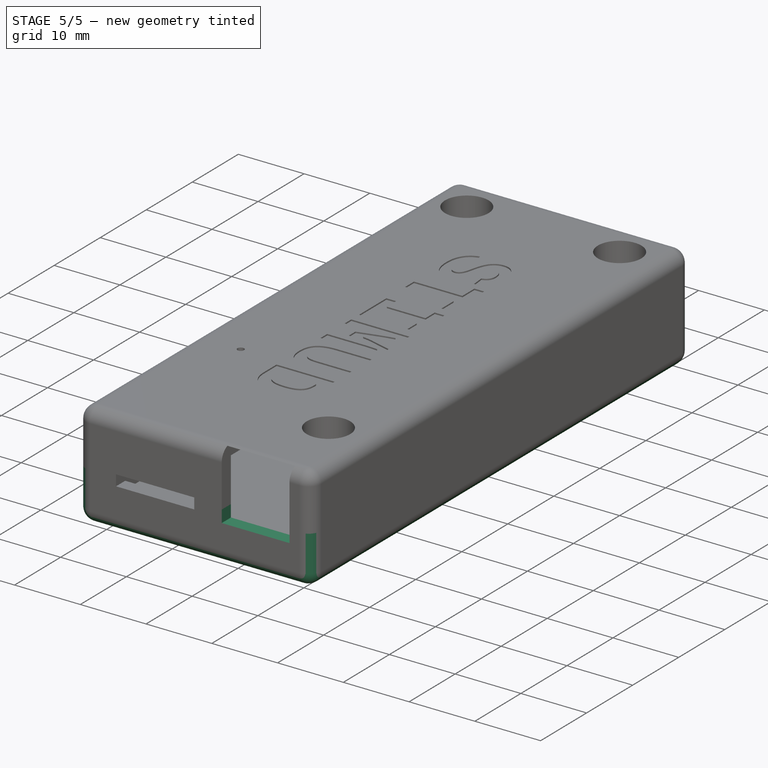
[diagram: stage 5 of 5 — iso view after this stage's code; geometry added in this stage tinted green]
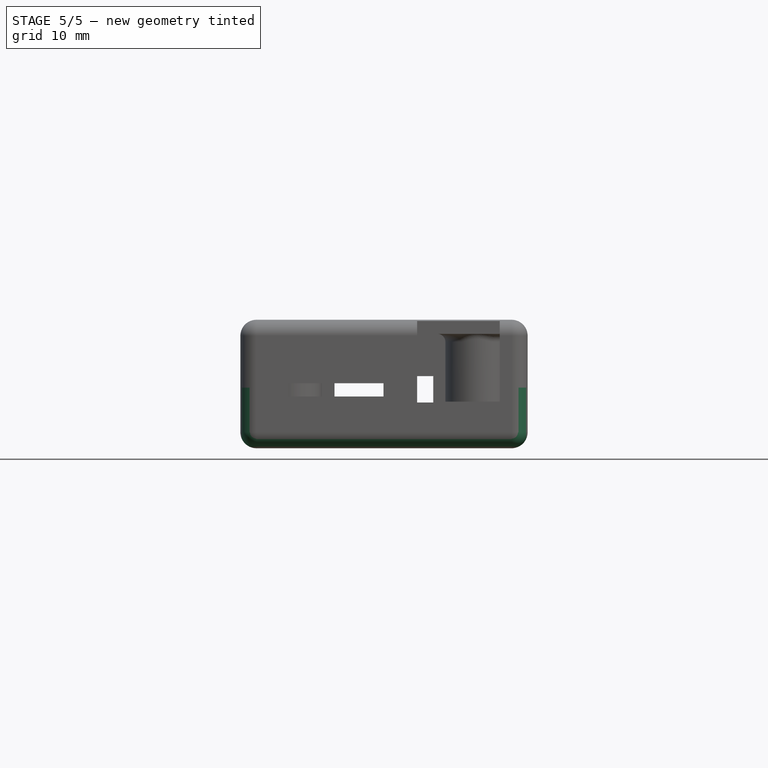
[diagram: stage 5 of 5 — front view after this stage's code; geometry added in this stage tinted green]
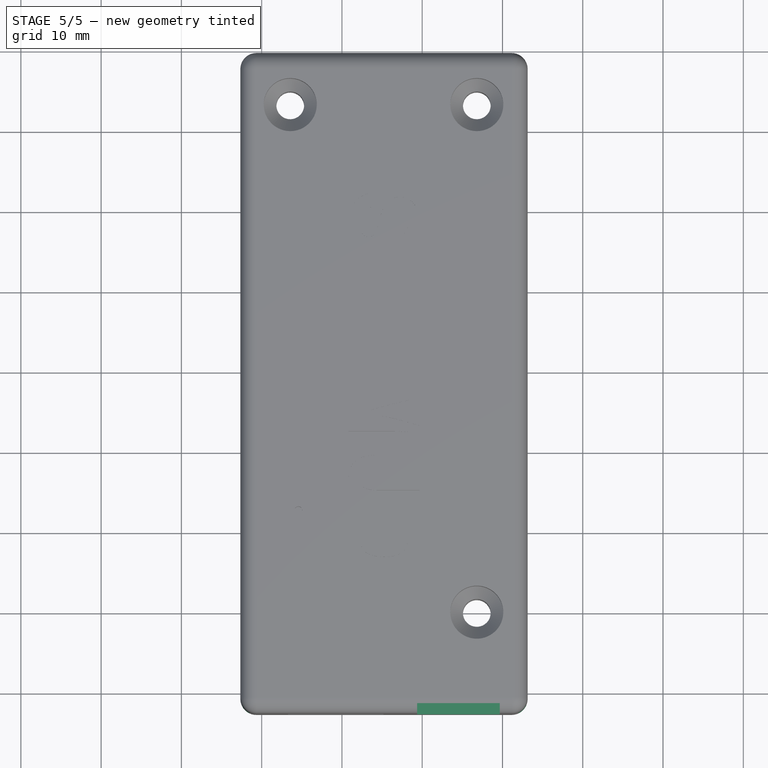
[diagram: stage 5 of 5 — top view after this stage's code; geometry added in this stage tinted green]
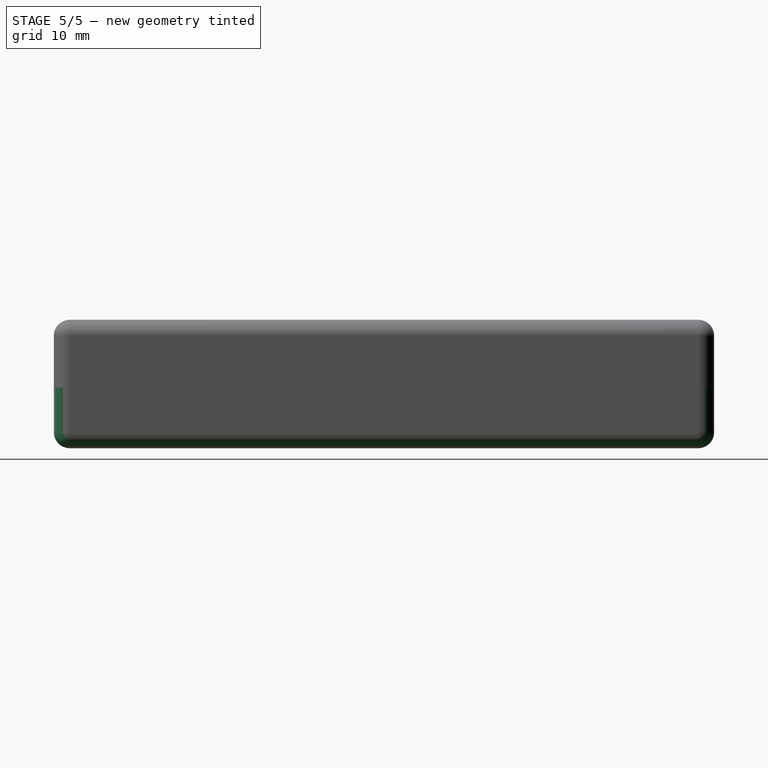
[diagram: stage 5 of 5 — right view after this stage's code; geometry added in this stage tinted green]
FEATURE [Sketcher::SketchObject] Sketch005  label="CaseASketchSwitchPocket"
  AttachmentOffset = pos=(0,0,3) rot=(0,0,1;0rad)
  MapMode = 5
  Placement = pos=(0,0,3) rot=(0,0,1;0rad)
  Support = -> [XY_Plane]
  expr: Constraints.SWITCH_W = Params.SWITCH_W + 2 * Params.GAP_XY
  expr: Constraints.SWITCH_X = Params.SWITCH_X - Params.GAP_XY
  expr: Constraints[9] = Params.SPACE_XY + Params.GAP_XY + Params.WALL
  expr: AttachmentOffset.Base.z = Params.BOARD_D + Params.TF_D2
  sketch-geometry (4):
    g0: LineSegment StartX=19.36 StartY=-2.65 StartZ=0 EndX=29.66 EndY=-2.65 EndZ=0
    g1: LineSegment StartX=29.66 StartY=-2.65 StartZ=0 EndX=29.66 EndY=0 EndZ=0
    g2: LineSegment StartX=29.66 StartY=0 StartZ=0 EndX=19.36 EndY=0 EndZ=0
    g3: LineSegment StartX=19.36 StartY=0 StartZ=0 EndX=19.36 EndY=-2.65 EndZ=0
  constraints (12):
    c: Coincident(g0,g1)
    c: Coincident(g1,g2)
    c: Coincident(g2,g3)
    c: Coincident(g3,g0)
    c: Horizontal(g0)
    c: Horizontal(g2)
    c: Vertical(g1)
    c: Vertical(g3)
    c: Horizontal(g2,g-1)
    c: DistanceY(g3,g3) = 2.65
    c: DistanceX(g-1,g2) = 19.36  'SWITCH_X'
    c: DistanceX(g2,g2) = 10.3  'SWITCH_W'
FEATURE [PartDesign::Pocket] Pocket002  label="CaseASwitchPocket"
  BaseFeature = -> Pocket001
  Length = 1.85
  Length2 = 100
  Profile = -> Sketch005
  Type = 0
  expr: Length = Params.TF_D2 + Params.GAP_Z
FEATURE [Sketcher::SketchObject] Sketch006  label="CaseASketchUsbPocket"
  AttachmentOffset = pos=(0,0,3) rot=(0,0,1;0rad)
  MapMode = 5
  Placement = pos=(0,0,3) rot=(0,0,1;0rad)
  Support = -> [XY_Plane]
  expr: Constraints[11] = Params.SPACE_XY + Params.GAP_XY + Params.WALL
  expr: Constraints.USB_X = Params.USB_X - Params.GAP_XY
  expr: Constraints.USB_W = Params.USB_W + 2 * Params.GAP_XY
  expr: Constraints[8] = Params.BOARD_H
  expr: AttachmentOffset.Base.z = Params.BOARD_D + Params.TF_D2
  sketch-geometry (4):
    g0: LineSegment StartX=9.08 StartY=76.96 StartZ=0 EndX=21.38 EndY=76.96 EndZ=0
    g1: LineSegment StartX=21.38 StartY=76.96 StartZ=0 EndX=21.38 EndY=79.61 EndZ=0
    g2: LineSegment StartX=21.38 StartY=79.61 StartZ=0 EndX=9.08 EndY=79.61 EndZ=0
    g3: LineSegment StartX=9.08 StartY=79.61 StartZ=0 EndX=9.08 EndY=76.96 EndZ=0
  constraints (12):
    c: Coincident(g0,g1)
    c: Coincident(g1,g2)
    c: Coincident(g2,g3)
    c: Coincident(g3,g0)
    c: Horizontal(g0)
    c: Horizontal(g2)
    c: Vertical(g1)
    c: Vertical(g3)
    c: DistanceY(g-1,g0) = 76.96
    c: DistanceX(g0,g0) = 12.3  'USB_W'
    c: DistanceX(g-1,g0) = 9.08  'USB_X'
    c: DistanceY(g1,g1) = 2.65
FEATURE [PartDesign::Pocket] Pocket003  label="CaseAUsbPocket"
  BaseFeature = -> Pocket002
  Length = 3.27
  Length2 = 100
  Profile = -> Sketch006
  Type = 0
  expr: Length = -Params.USB_Z + Params.TF_D2 + Params.GAP_Z
FEATURE [Sketcher::SketchObject] Sketch007  label="CaseASketchLatchPad"
  AttachmentOffset = pos=(0,0,3) rot=(0,0,1;0rad)
  MapMode = 5
  Placement = pos=(0,0,3) rot=(0,0,1;0rad)
  Support = -> [XY_Plane]
  expr: Constraints[50] = Params.BOARD_H + 2 * (Params.SPACE_XY + Params.GAP_XY)
  expr: Constraints[34] = CaseASketchSwitchPocket.Constraints.SWITCH_X + CaseASketchSwitchPocket.Constraints.SWITCH_W
  expr: Constraints[33] = Params.BOARD_W + 2 * (Params.SPACE_XY + Params.GAP_XY)
  expr: Constraints[15] = Params.SPACE_XY + Params.GAP_XY
  expr: Constraints[70] = CaseASketchUsbPocket.Constraints.USB_W
  expr: Constraints[17] = Params.TF_H
  expr: Constraints[14] = Params.SPACE_XY + Params.GAP_XY
  expr: Constraints[12] = Params.WALL / 2 - Params.GAP_XY
  expr: Constraints[52] = CaseASketchUsbPocket.Constraints.USB_X
  expr: Constraints[16] = CaseASketchTfPocket.Constraints.TF_X
  expr: AttachmentOffset.Base.z = Params.BOARD_D + Params.TF_D2
  sketch-geometry (24):
    g0: LineSegment StartX=-0.65 StartY=14.5 StartZ=0 EndX=-0.65 EndY=-0.65 EndZ=0
    g1: LineSegment StartX=-0.65 StartY=-0.65 StartZ=0 EndX=3.28 EndY=-0.65 EndZ=0
    g2: LineSegment StartX=3.28 StartY=-0.65 StartZ=0 EndX=3.28 EndY=-1.5 EndZ=0
    g3: LineSegment StartX=3.28 StartY=-1.5 StartZ=0 EndX=-1.5 EndY=-1.5 EndZ=0
    g4: LineSegment StartX=-1.5 StartY=-1.5 StartZ=0 EndX=-1.5 EndY=14.5 EndZ=0
    g5: LineSegment StartX=-1.5 StartY=14.5 StartZ=0 EndX=-0.65 EndY=14.5 EndZ=0
    g6: LineSegment StartX=29.66 StartY=-0.65 StartZ=0 EndX=29.66 EndY=-1.5 EndZ=0
    g7: LineSegment StartX=29.66 StartY=-1.5 StartZ=0 EndX=31.98 EndY=-1.5 EndZ=0
    g8: LineSegment StartX=31.98 StartY=-1.5 StartZ=0 EndX=31.98 EndY=14.5 EndZ=0
    g9: LineSegment StartX=31.98 StartY=14.5 StartZ=0 EndX=31.13 EndY=14.5 EndZ=0
    g10: LineSegment StartX=31.13 StartY=14.5 StartZ=0 EndX=31.13 EndY=-0.65 EndZ=0
    g11: LineSegment StartX=31.13 StartY=-0.65 StartZ=0 EndX=29.66 EndY=-0.65 EndZ=0
    g12: LineSegment StartX=-1.5 StartY=78.46 StartZ=0 EndX=-1.5 EndY=62.46 EndZ=0
    g13: LineSegment StartX=-1.5 StartY=62.46 StartZ=0 EndX=-0.65 EndY=62.46 EndZ=0
    g14: LineSegment StartX=-0.65 StartY=62.46 StartZ=0 EndX=-0.65 EndY=77.61 EndZ=0
    g15: LineSegment StartX=-0.65 StartY=77.61 StartZ=0 EndX=9.08 EndY=77.61 EndZ=0
    g16: LineSegment StartX=9.08 StartY=77.61 StartZ=0 EndX=9.08 EndY=78.46 EndZ=0
    g17: LineSegment StartX=9.08 StartY=78.46 StartZ=0 EndX=-1.5 EndY=78.46 EndZ=0
    g18: LineSegment StartX=21.38 StartY=78.46 StartZ=0 EndX=21.38 EndY=77.61 EndZ=0
    g19: LineSegment StartX=21.38 StartY=77.61 StartZ=0 EndX=31.13 EndY=77.61 EndZ=0
    g20: LineSegment StartX=31.13 StartY=77.61 StartZ=0 EndX=31.13 EndY=62.46 EndZ=0
    g21: LineSegment StartX=31.13 StartY=62.46 StartZ=0 EndX=31.98 EndY=62.46 EndZ=0
    g22: LineSegment StartX=31.98 StartY=62.46 StartZ=0 EndX=31.98 EndY=78.46 EndZ=0
    g23: LineSegment StartX=31.98 StartY=78.46 StartZ=0 EndX=21.38 EndY=78.46 EndZ=0
  constraints (72):
    c: Vertical(g0)
    c: Coincident(g0,g1)
    c: Horizontal(g1)
    c: Coincident(g1,g2)
    c: Vertical(g2)
    c: Coincident(g2,g3)
    c: Horizontal(g3)
    c: Coincident(g3,g4)
    c: Vertical(g4)
    c: Coincident(g4,g5)
    c: Coincident(g5,g0)
    c: Horizontal(g5)
    c: DistanceX(g5,g5) = 0.85
    c: Equal(g5,g2)
    c: DistanceY(g1,g-1) = 0.65
    c: DistanceX(g0,g-1) = 0.65
    c: DistanceX(g-1,g1) = 3.28
    c: DistanceY(g-1,g0) = 14.5
    c: Vertical(g6)
    c: Coincident(g6,g7)
    c: Horizontal(g7)
    c: Coincident(g7,g8)
    c: Vertical(g8)
    c: Coincident(g8,g9)
    c: Horizontal(g9)
    c: Coincident(g9,g10)
    c: Vertical(g10)
    c: Coincident(g10,g11)
    c: Horizontal(g11)
    c: Coincident(g6,g11)
    c: Horizontal(g6,g1)
    c: Equal(g2,g6)
    c: Equal(g9,g6)
    c: DistanceX(g0,g10) = 31.78
    c: DistanceX(g-1,g6) = 29.66
    c: Horizontal(g9,g0)
    c: Vertical(g12)
    c: Coincident(g12,g13)
    c: Horizontal(g13)
    c: Coincident(g13,g14)
    c: Vertical(g14)
    c: Coincident(g14,g15)
    c: Horizontal(g15)
    c: Coincident(g15,g16)
    c: Vertical(g16)
    c: Coincident(g16,g17)
    c: Coincident(g17,g12)
    c: Horizontal(g17)
    c: Equal(g13,g5)
    c: Equal(g13,g16)
    c: DistanceY(g0,g14) = 78.26
    c: Equal(g14,g0)
    c: DistanceX(g-1,g15) = 9.08
    c: Vertical(g13,g0)
    c: Vertical(g18)
    c: Coincident(g18,g19)
    c: Horizontal(g19)
    c: Coincident(g19,g20)
    c: Vertical(g20)
    c: Coincident(g20,g21)
    c: Horizontal(g21)
    c: Coincident(g21,g22)
    c: Vertical(g22)
    c: Coincident(g22,g23)
    c: Coincident(g23,g18)
    c: Horizontal(g23)
    c: Equal(g18,g16)
    c: Horizontal(g18,g15)
    c: Equal(g18,g21)
    c: Vertical(g20,g9)
    c: DistanceX(g15,g18) = 12.3
    c: Horizontal(g20,g13)
FEATURE [PartDesign::Pad] Pad002  label="CaseALatchPad"
  BaseFeature = -> Pocket003
  Length = 2.5
  Length2 = 100
  Profile = -> Sketch007
  Type = 0
  expr: Length = Params.CASE_A_L
FEATURE [Sketcher::SketchObject] Sketch008  label="CaseASketchNutsPocket"
  AttachmentOffset = pos=(0,0,-4.55) rot=(0,0,1;0rad)
  MapMode = 5
  Placement = pos=(0,0,-4.55) rot=(0,0,1;0rad)
  Support = -> [XY_Plane]
  expr: Constraints[62] = Params.CASE_NUT_W + 2 * Params.GAP_XY
  expr: AttachmentOffset.Base.z = -(Params.SPACE_Z + Params.GAP_Z + Params.WALL)
  expr: Constraints[61] = Params.HOLE3_Y
  expr: Constraints[19] = Params.HOLE1_Y
  expr: Constraints[59] = Params.HOLE2_Y
  expr: Constraints[58] = Params.HOLE2_X
  expr: Constraints[18] = Params.HOLE1_X
  expr: Constraints[60] = Params.HOLE3_X
  sketch-geometry (21):
    g0: LineSegment StartX=28.4743 StartY=7.01 StartZ=0 EndX=30.1486 EndY=9.91 EndZ=0
    g1: LineSegment StartX=30.1486 StartY=9.91 StartZ=0 EndX=28.4743 EndY=12.81 EndZ=0
    g2: LineSegment StartX=28.4743 StartY=12.81 StartZ=0 EndX=25.1257 EndY=12.81 EndZ=0
    g3: LineSegment StartX=25.1257 StartY=12.81 StartZ=0 EndX=23.4514 EndY=9.91 EndZ=0
    g4: LineSegment StartX=23.4514 StartY=9.91 StartZ=0 EndX=25.1257 EndY=7.01 EndZ=0
    g5: LineSegment StartX=25.1257 StartY=7.01 StartZ=0 EndX=28.4743 EndY=7.01 EndZ=0
    g6: Circle [constr] CenterX=26.8 CenterY=9.91 CenterZ=0 NormalX=0 NormalY=0 NormalZ=1 AngleXU=0 Radius=3.34863
    g7: LineSegment StartX=28.4743 StartY=70.25 StartZ=0 EndX=30.1486 EndY=73.15 EndZ=0
    g8: LineSegment StartX=30.1486 StartY=73.15 StartZ=0 EndX=28.4743 EndY=76.05 EndZ=0
    g9: LineSegment StartX=28.4743 StartY=76.05 StartZ=0 EndX=25.1257 EndY=76.05 EndZ=0
    g10: LineSegment StartX=25.1257 StartY=76.05 StartZ=0 EndX=23.4514 EndY=73.15 EndZ=0
    g11: LineSegment StartX=23.4514 StartY=73.15 StartZ=0 EndX=25.1257 EndY=70.25 EndZ=0
    g12: LineSegment StartX=25.1257 StartY=70.25 StartZ=0 EndX=28.4743 EndY=70.25 EndZ=0
    g13: Circle [constr] CenterX=26.8 CenterY=73.15 CenterZ=0 NormalX=0 NormalY=0 NormalZ=1 AngleXU=0 Radius=3.34863
    g14: LineSegment StartX=5.23432 StartY=70.25 StartZ=0 EndX=6.90863 EndY=73.15 EndZ=0
    g15: LineSegment StartX=6.90863 StartY=73.15 StartZ=0 EndX=5.23432 EndY=76.05 EndZ=0
    g16: LineSegment StartX=5.23432 StartY=76.05 StartZ=0 EndX=1.88568 EndY=76.05 EndZ=0
    g17: LineSegment StartX=1.88568 StartY=76.05 StartZ=0 EndX=0.211368 EndY=73.15 EndZ=0
    g18: LineSegment StartX=0.211368 StartY=73.15 StartZ=0 EndX=1.88568 EndY=70.25 EndZ=0
    g19: LineSegment StartX=1.88568 StartY=70.25 StartZ=0 EndX=5.23432 EndY=70.25 EndZ=0
    g20: Circle [constr] CenterX=3.56 CenterY=73.15 CenterZ=0 NormalX=0 NormalY=0 NormalZ=1 AngleXU=0 Radius=3.34863
  constraints (51):
    c: Coincident(g0,g1)
    c: Coincident(g1,g2)
    c: Coincident(g2,g3)
    c: Coincident(g3,g4)
    c: Coincident(g4,g5)
    c: Coincident(g5,g0)
    c: Equal(g0, g1-g5) x5
    c: PointOnObject(g0,g6)
    c: PointOnObject(g1,g6)
    c: PointOnObject(g2,g6)
    c: PointOnObject(g3,g6)
    c: PointOnObject(g4,g6)
    c: PointOnObject(g5,g6)
    c: Horizontal(g5)
    c: DistanceX(g-1,g6) = 26.8
    c: DistanceY(g-1,g6) = 9.91
    c: Coincident(g7,g8)
    c: Coincident(g8,g9)
    c: Coincident(g9,g10)
    c: Coincident(g10,g11)
    c: Coincident(g11,g12)
    c: Coincident(g12,g7)
    c: Equal(g7, g8-g12) x5
    c: PointOnObject(g7,g13)
    c: PointOnObject(g8,g13)
    c: PointOnObject(g9,g13)
    c: PointOnObject(g10,g13)
    c: PointOnObject(g11,g13)
    c: PointOnObject(g12,g13)
    c: Horizontal(g12)
    c: Coincident(g14,g15)
    c: Coincident(g15,g16)
    c: Coincident(g16,g17)
    c: Coincident(g17,g18)
    c: Coincident(g18,g19)
    c: Coincident(g19,g14)
    c: Equal(g14, g15-g19) x5
    c: PointOnObject(g14,g20)
    c: PointOnObject(g15,g20)
    c: PointOnObject(g16,g20)
    c: PointOnObject(g17,g20)
    c: PointOnObject(g18,g20)
    c: PointOnObject(g19,g20)
    c: Horizontal(g19)
    c: Equal(g20,g13)
    c: Equal(g13,g6)
    c: DistanceX(g-1,g20) = 3.56
    c: DistanceY(g-1,g20) = 73.15
    c: DistanceX(g-1,g13) = 26.8
    c: DistanceY(g-1,g13) = 73.15
    c: DistanceY(g0,g1) = 5.8
FEATURE [PartDesign::Pocket] Pocket004  label="CaseANutsPocket"
  BaseFeature = -> Pad002
  Length = 2.5
  Length2 = 100
  Profile = -> Sketch008
  Refine = true
  Reversed = true
  Type = 0
  expr: Length = Params.CASE_NUT_D
FEATURE [PartDesign::Fillet] Fillet  label="CaseAFilletStands"
  Base = -> Pocket004 [Edge5,Edge178,Edge6,Edge8,Edge7]
  BaseFeature = -> Pocket004
  Radius = 1
  expr: Radius = Params.FILLET_STAND
FEATURE [PartDesign::Fillet] Fillet001  label="CaseAFilletOuter"
  Base = -> Fillet [Edge137,Edge135,Edge133,Edge134,Edge164,Edge132,Edge129,Edge130]
  BaseFeature = -> Fillet
  Radius = 1.99
  expr: Radius = Params.FILLET_OUT
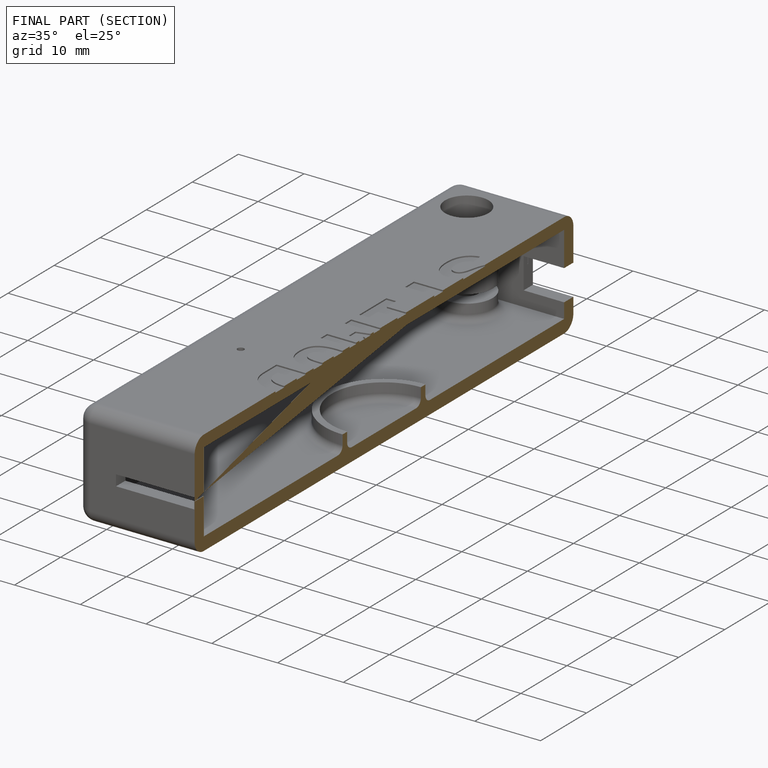
[diagram: finished part — half-section view (interior)]
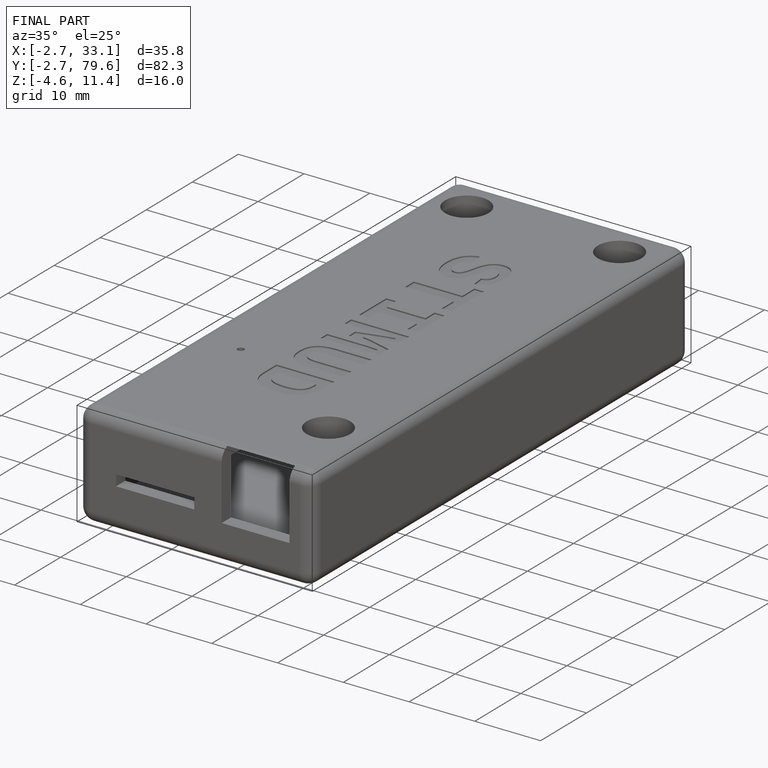
[diagram: finished part — iso view with bounding-box wireframe]
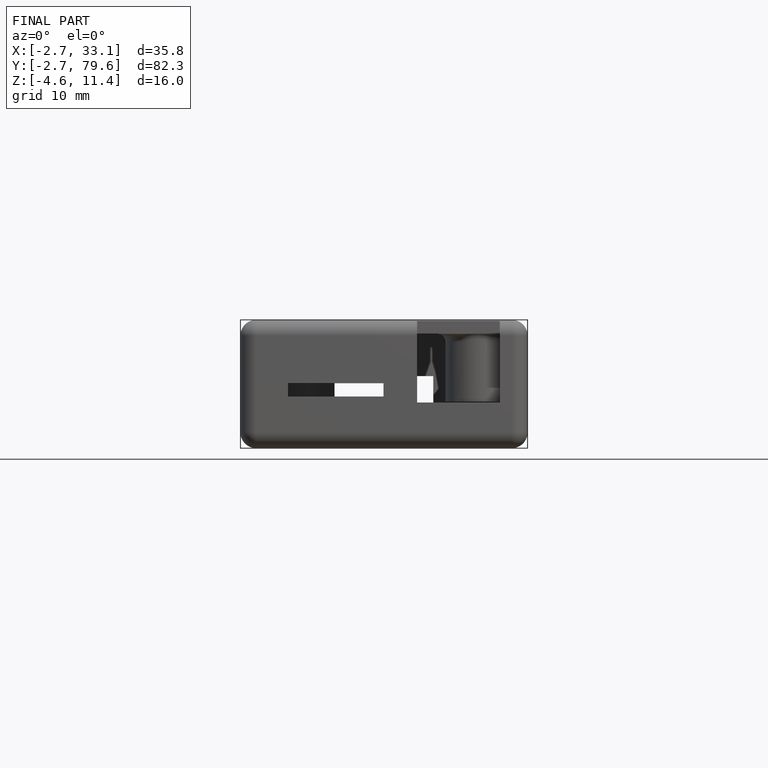
[diagram: finished part — front view with bounding-box wireframe]
